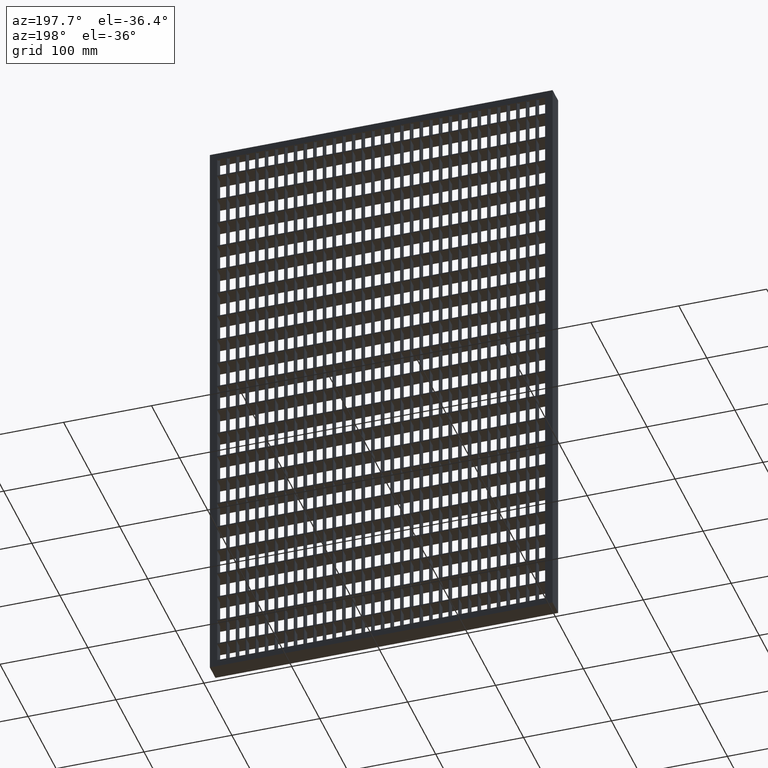
[diagram: clean part render]
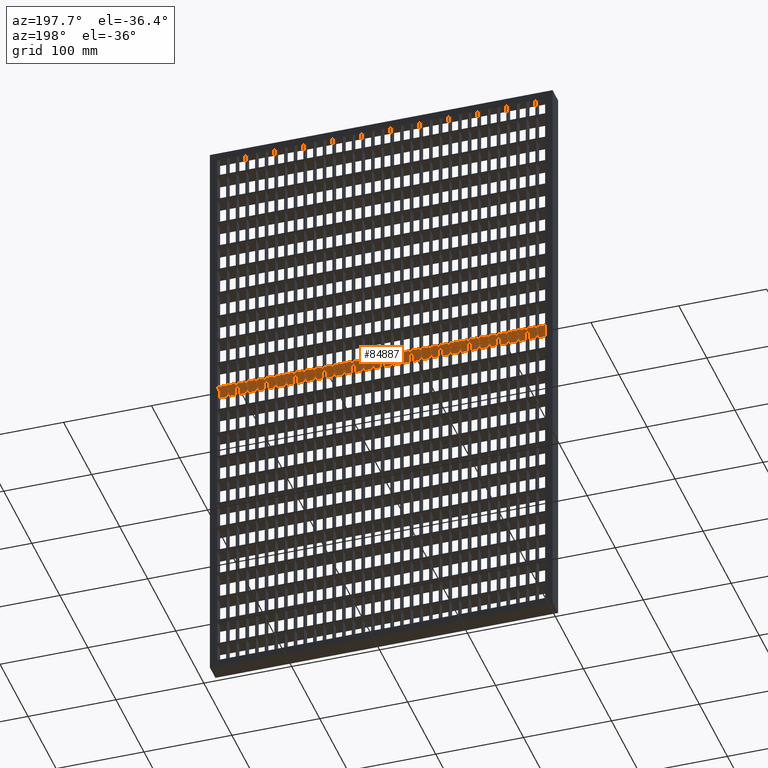
[diagram: same view with one face highlighted and labeled with its STEP entity id]
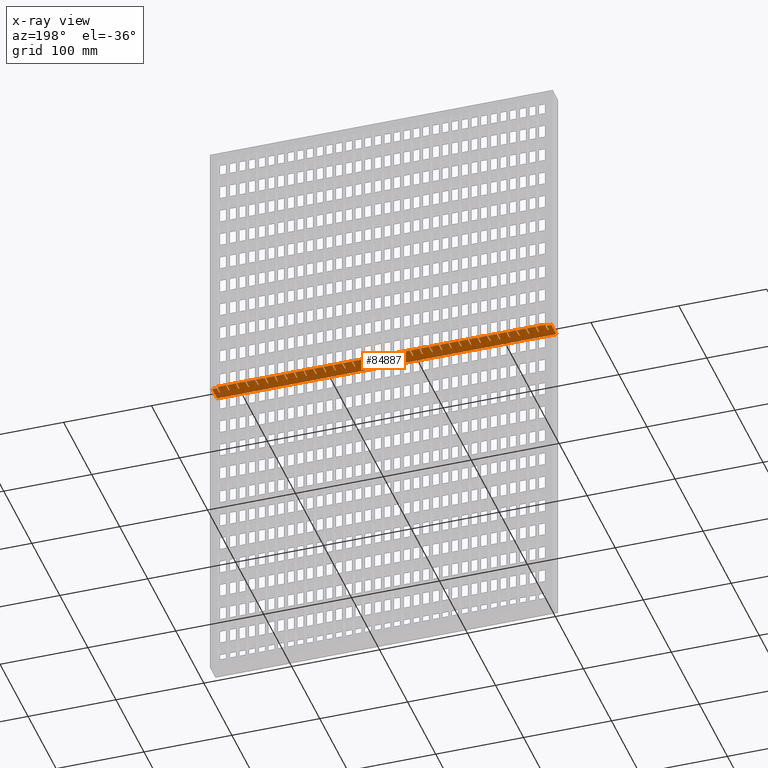
[diagram: x-ray of the same camera — body ghosted, the highlighted face saturated]
A machine part, auxiliary view. The second image highlights one B-rep face of the part: STEP entity #84887.
The next image is the same camera in x-ray: the body ghosted, the highlighted face saturated — about 0% of this face is hidden behind the body in this view.
In plain terms, the highlighted planar face has unit normal (0, 0, -1).
Its self-contained STEP definition (entity closure, byte-faithful):
#39 = ORIENTED_EDGE ( 'NONE', *, *, #57928, .F. ) ;
#112 = LINE ( 'NONE', #52347, #63353 ) ;
#271 = LINE ( 'NONE', #92678, #33187 ) ;
#303 = VECTOR ( 'NONE', #47124, 1000.000000000000000 ) ;
#404 = VERTEX_POINT ( 'NONE', #97459 ) ;
#497 = VERTEX_POINT ( 'NONE', #66226 ) ;
#511 = EDGE_CURVE ( 'NONE', #6106, #52737, #45007, .T. ) ;
#755 = EDGE_CURVE ( 'NONE', #49544, #87431, #68930, .T. ) ;
#790 = CARTESIAN_POINT ( 'NONE',  ( 206.5000000000000600, 7.001226303889181300E-016, -314.2500000000001100 ) ) ;
#814 = VERTEX_POINT ( 'NONE', #54538 ) ;
#825 = CARTESIAN_POINT ( 'NONE',  ( 304.5000000000000000, 10.00000000000000200, -314.2500000000001100 ) ) ;
#1156 = DIRECTION ( 'NONE',  ( 0.0000000000000000000, 1.000000000000000000, 0.0000000000000000000 ) ) ;
#1179 = ORIENTED_EDGE ( 'NONE', *, *, #18758, .F. ) ;
#1193 = LINE ( 'NONE', #70827, #45605 ) ;
#1275 = VECTOR ( 'NONE', #82627, 1000.000000000000000 ) ;
#1469 = LINE ( 'NONE', #83629, #36982 ) ;
#1478 = ORIENTED_EDGE ( 'NONE', *, *, #80392, .F. ) ;
#1601 = CARTESIAN_POINT ( 'NONE',  ( 359.5000000000000600, 10.00000000000000200, -314.2500000000001100 ) ) ;
#1630 = VERTEX_POINT ( 'NONE', #56831 ) ;
#1690 = VERTEX_POINT ( 'NONE', #57531 ) ;
#1910 = CARTESIAN_POINT ( 'NONE',  ( 408.0561711201316400, 10.00000000000012400, -314.2500000000001100 ) ) ;
#2102 = ORIENTED_EDGE ( 'NONE', *, *, #4016, .F. ) ;
#2117 = ORIENTED_EDGE ( 'NONE', *, *, #53256, .F. ) ;
#2568 = EDGE_CURVE ( 'NONE', #99731, #103983, #7928, .T. ) ;
#2706 = CARTESIAN_POINT ( 'NONE',  ( 408.0561711201316400, -3.989863994746656300E-014, -314.2500000000001100 ) ) ;
#2727 = DIRECTION ( 'NONE',  ( -1.000000000000000000, -3.061616997868383100E-016, 0.0000000000000000000 ) ) ;
#2897 = VECTOR ( 'NONE', #14347, 1000.000000000000000 ) ;
#2969 = EDGE_CURVE ( 'NONE', #78022, #88343, #100605, .T. ) ;
#3103 = VECTOR ( 'NONE', #100396, 1000.000000000000000 ) ;
#3162 = DIRECTION ( 'NONE',  ( 0.0000000000000000000, -1.000000000000000000, 0.0000000000000000000 ) ) ;
#3443 = CARTESIAN_POINT ( 'NONE',  ( 95.50000000000008500, 10.00000000000003000, -314.2500000000001100 ) ) ;
#3476 = EDGE_CURVE ( 'NONE', #73118, #15214, #43522, .T. ) ;
#3532 = CARTESIAN_POINT ( 'NONE',  ( 408.0561711201316400, 10.00000000000012400, -314.2500000000001100 ) ) ;
#3661 = ORIENTED_EDGE ( 'NONE', *, *, #46215, .T. ) ;
#3781 = DIRECTION ( 'NONE',  ( 0.0000000000000000000, -1.000000000000000000, 0.0000000000000000000 ) ) ;
#3902 = CARTESIAN_POINT ( 'NONE',  ( 327.5000000000000000, 10.00000000000000200, -314.2500000000001100 ) ) ;
#3911 = CARTESIAN_POINT ( 'NONE',  ( 217.5000000000000600, 7.001226303889181300E-016, -314.2500000000001100 ) ) ;
#3934 = VECTOR ( 'NONE', #84142, 1000.000000000000000 ) ;
#3975 = VECTOR ( 'NONE', #52204, 1000.000000000000000 ) ;
#3999 = CARTESIAN_POINT ( 'NONE',  ( 408.0561711201316400, -5.030698080332740600E-014, -314.2500000000001100 ) ) ;
#4016 = EDGE_CURVE ( 'NONE', #85233, #81371, #48391, .T. ) ;
#4045 = VERTEX_POINT ( 'NONE', #11436 ) ;
#4047 = LINE ( 'NONE', #39226, #5386 ) ;
#4129 = VECTOR ( 'NONE', #79084, 1000.000000000000000 ) ;
#4349 = EDGE_CURVE ( 'NONE', #86903, #54451, #72282, .T. ) ;
#4401 = EDGE_CURVE ( 'NONE', #78638, #90697, #12786, .T. ) ;
#4485 = VECTOR ( 'NONE', #20427, 1000.000000000000000 ) ;
#4548 = ORIENTED_EDGE ( 'NONE', *, *, #42803, .F. ) ;
#4847 = VERTEX_POINT ( 'NONE', #48982 ) ;
#4906 = DIRECTION ( 'NONE',  ( -1.000000000000000000, -3.061616997868383100E-016, 0.0000000000000000000 ) ) ;
#4963 = CARTESIAN_POINT ( 'NONE',  ( 227.5000000000000000, 0.0000000000000000000, -314.2500000000001100 ) ) ;
#5042 = CARTESIAN_POINT ( 'NONE',  ( 408.0561711201316400, 8.673617379884035500E-014, -314.2500000000001100 ) ) ;
#5260 = LINE ( 'NONE', #25289, #71046 ) ;
#5361 = LINE ( 'NONE', #14291, #4129 ) ;
#5386 = VECTOR ( 'NONE', #39921, 1000.000000000000000 ) ;
#5448 = LINE ( 'NONE', #50942, #89020 ) ;
#5450 = DIRECTION ( 'NONE',  ( 1.000000000000000000, -3.061616997868381200E-016, 0.0000000000000000000 ) ) ;
#5475 = DIRECTION ( 'NONE',  ( -1.000000000000000000, -3.061616997868383100E-016, 0.0000000000000000000 ) ) ;
#5478 = LINE ( 'NONE', #10968, #85216 ) ;
#5480 = VERTEX_POINT ( 'NONE', #40725 ) ;
#5578 = ORIENTED_EDGE ( 'NONE', *, *, #73301, .T. ) ;
#5994 = DIRECTION ( 'NONE',  ( 0.0000000000000000000, 1.000000000000000000, 0.0000000000000000000 ) ) ;
#6030 = VERTEX_POINT ( 'NONE', #76533 ) ;
#6101 = DIRECTION ( 'NONE',  ( 0.0000000000000000000, -1.000000000000000000, 0.0000000000000000000 ) ) ;
#6106 = VERTEX_POINT ( 'NONE', #103083 ) ;
#6206 = ORIENTED_EDGE ( 'NONE', *, *, #74067, .T. ) ;
#6232 = CARTESIAN_POINT ( 'NONE',  ( 337.5000000000000000, 0.0000000000000000000, -314.2500000000001100 ) ) ;
#6295 = VERTEX_POINT ( 'NONE', #79683 ) ;
#6414 = CARTESIAN_POINT ( 'NONE',  ( 348.5000000000000600, 10.00000000000000200, -314.2500000000001100 ) ) ;
#6484 = LINE ( 'NONE', #17701, #58338 ) ;
#6521 = DIRECTION ( 'NONE',  ( 0.0000000000000000000, -1.000000000000000000, 0.0000000000000000000 ) ) ;
#6584 = CARTESIAN_POINT ( 'NONE',  ( 150.5000000000000300, 7.001226303889181300E-016, -314.2500000000001100 ) ) ;
#6734 = CARTESIAN_POINT ( 'NONE',  ( 41.50000000000000700, 1.006284330175756500E-015, -314.2500000000001100 ) ) ;
#6818 = CARTESIAN_POINT ( 'NONE',  ( 305.5000000000000000, 7.001226303889181300E-016, -314.2500000000001100 ) ) ;
#6833 = LINE ( 'NONE', #44675, #101818 ) ;
#6957 = ORIENTED_EDGE ( 'NONE', *, *, #65957, .F. ) ;
#7044 = ORIENTED_EDGE ( 'NONE', *, *, #2568, .T. ) ;
#7175 = EDGE_CURVE ( 'NONE', #45686, #13312, #83128, .T. ) ;
#7299 = CARTESIAN_POINT ( 'NONE',  ( 206.5000000000000600, -9.999999999999877400, -314.2500000000001100 ) ) ;
#7402 = EDGE_CURVE ( 'NONE', #34706, #55858, #29910, .T. ) ;
#7447 = DIRECTION ( 'NONE',  ( 1.000000000000000000, -3.061616997868381200E-016, 0.0000000000000000000 ) ) ;
#7495 = EDGE_CURVE ( 'NONE', #60206, #49544, #67831, .T. ) ;
#7498 = VERTEX_POINT ( 'NONE', #31297 ) ;
#7685 = CARTESIAN_POINT ( 'NONE',  ( 315.5000000000001100, 0.0000000000000000000, -314.2500000000001100 ) ) ;
#7812 = CARTESIAN_POINT ( 'NONE',  ( 381.5000000000000600, 10.00000000000000200, -314.2500000000001100 ) ) ;
#7880 = VECTOR ( 'NONE', #101434, 1000.000000000000000 ) ;
#7928 = LINE ( 'NONE', #33972, #10488 ) ;
#7951 = EDGE_CURVE ( 'NONE', #73721, #76154, #10790, .T. ) ;
#7958 = VERTEX_POINT ( 'NONE', #43634 ) ;
#7991 = LINE ( 'NONE', #64723, #79027 ) ;
#8010 = LINE ( 'NONE', #100371, #33334 ) ;
#8142 = CARTESIAN_POINT ( 'NONE',  ( 408.0561711201316400, -6.071532165918824800E-014, -314.2500000000001100 ) ) ;
#8172 = DIRECTION ( 'NONE',  ( 0.0000000000000000000, 1.000000000000000000, 0.0000000000000000000 ) ) ;
#8273 = EDGE_CURVE ( 'NONE', #35629, #61623, #51372, .T. ) ;
#8493 = ORIENTED_EDGE ( 'NONE', *, *, #48735, .T. ) ;
#8608 = ORIENTED_EDGE ( 'NONE', *, *, #19756, .F. ) ;
#8692 = VERTEX_POINT ( 'NONE', #20865 ) ;
#8766 = VECTOR ( 'NONE', #7447, 1000.000000000000000 ) ;
#9034 = EDGE_CURVE ( 'NONE', #101989, #73175, #33459, .T. ) ;
#9244 = VERTEX_POINT ( 'NONE', #42240 ) ;
#9565 = DIRECTION ( 'NONE',  ( -1.000000000000000000, -3.061616997868383100E-016, 0.0000000000000000000 ) ) ;
#9652 = DIRECTION ( 'NONE',  ( 1.000000000000000000, 0.0000000000000000000, 0.0000000000000000000 ) ) ;
#9796 = ORIENTED_EDGE ( 'NONE', *, *, #94476, .T. ) ;
#9827 = ORIENTED_EDGE ( 'NONE', *, *, #51061, .F. ) ;
#9891 = ORIENTED_EDGE ( 'NONE', *, *, #72750, .F. ) ;
#9899 = EDGE_CURVE ( 'NONE', #40347, #37488, #5448, .T. ) ;
#9913 = EDGE_CURVE ( 'NONE', #95473, #10345, #29415, .T. ) ;
#10095 = CARTESIAN_POINT ( 'NONE',  ( 408.0561711201316400, -9.999999999999877400, -314.2500000000001100 ) ) ;
#10340 = VECTOR ( 'NONE', #45058, 1000.000000000000000 ) ;
#10345 = VERTEX_POINT ( 'NONE', #77616 ) ;
#10409 = VECTOR ( 'NONE', #19760, 1000.000000000000000 ) ;
#10487 = CARTESIAN_POINT ( 'NONE',  ( 250.5000000000000600, -9.999999999999877400, -314.2500000000001100 ) ) ;
#10488 = VECTOR ( 'NONE', #50946, 1000.000000000000000 ) ;
#10539 = LINE ( 'NONE', #15390, #72567 ) ;
#10786 = EDGE_CURVE ( 'NONE', #13788, #98179, #93985, .T. ) ;
#10790 = LINE ( 'NONE', #46125, #14541 ) ;
#10806 = LINE ( 'NONE', #59433, #40004 ) ;
#10898 = EDGE_CURVE ( 'NONE', #75369, #6106, #100339, .T. ) ;
#10927 = DIRECTION ( 'NONE',  ( 0.0000000000000000000, -1.000000000000000000, 0.0000000000000000000 ) ) ;
#10954 = EDGE_CURVE ( 'NONE', #40843, #46437, #14170, .T. ) ;
#10968 = CARTESIAN_POINT ( 'NONE',  ( 408.0561711201316400, 8.326672684688674100E-014, -314.2500000000001100 ) ) ;
#11197 = DIRECTION ( 'NONE',  ( 0.0000000000000000000, -1.000000000000000000, 0.0000000000000000000 ) ) ;
#11385 = VECTOR ( 'NONE', #26515, 1000.000000000000000 ) ;
#11436 = CARTESIAN_POINT ( 'NONE',  ( 304.5000000000000000, 0.0000000000000000000, -314.2500000000001100 ) ) ;
#11498 = VECTOR ( 'NONE', #2727, 1000.000000000000000 ) ;
#11511 = CARTESIAN_POINT ( 'NONE',  ( 261.5000000000000600, 7.001226303889181300E-016, -314.2500000000001100 ) ) ;
#11513 = CARTESIAN_POINT ( 'NONE',  ( 294.5000000000000600, -9.999999999999877400, -314.2500000000001100 ) ) ;
#11537 = VERTEX_POINT ( 'NONE', #84470 ) ;
#11903 = LINE ( 'NONE', #26697, #90405 ) ;
#11974 = CARTESIAN_POINT ( 'NONE',  ( 52.50000000000005000, -9.999999999999877400, -314.2500000000001100 ) ) ;
#12079 = VERTEX_POINT ( 'NONE', #64486 ) ;
#12177 = ORIENTED_EDGE ( 'NONE', *, *, #78146, .F. ) ;
#12199 = DIRECTION ( 'NONE',  ( -1.000000000000000000, -3.061616997868383100E-016, 0.0000000000000000000 ) ) ;
#12280 = CARTESIAN_POINT ( 'NONE',  ( 338.5000000000000000, 10.00000000000000200, -314.2500000000001100 ) ) ;
#12332 = DIRECTION ( 'NONE',  ( 0.0000000000000000000, 1.000000000000000000, 0.0000000000000000000 ) ) ;
#12338 = CARTESIAN_POINT ( 'NONE',  ( 408.0561711201316400, 10.00000000000012400, -314.2500000000001100 ) ) ;
#12345 = DIRECTION ( 'NONE',  ( 0.0000000000000000000, -1.000000000000000000, 0.0000000000000000000 ) ) ;
#12436 = CARTESIAN_POINT ( 'NONE',  ( 408.0561711201316400, 10.00000000000012400, -314.2500000000001100 ) ) ;
#12447 = CARTESIAN_POINT ( 'NONE',  ( 117.5000000000001000, 10.00000000000003700, -314.2500000000001100 ) ) ;
#12464 = CARTESIAN_POINT ( 'NONE',  ( 408.0561711201316400, 10.00000000000012400, -314.2500000000001100 ) ) ;
#12561 = CARTESIAN_POINT ( 'NONE',  ( 408.0561711201316400, -5.724587470723463400E-014, -314.2500000000001100 ) ) ;
#12617 = CARTESIAN_POINT ( 'NONE',  ( 217.5000000000000600, 10.00000000000000200, -314.2500000000001100 ) ) ;
#12645 = EDGE_CURVE ( 'NONE', #88010, #77776, #28925, .T. ) ;
#12750 = ORIENTED_EDGE ( 'NONE', *, *, #70962, .F. ) ;
#12779 = EDGE_CURVE ( 'NONE', #13383, #63190, #37818, .T. ) ;
#12786 = LINE ( 'NONE', #16638, #19088 ) ;
#12986 = VECTOR ( 'NONE', #94617, 1000.000000000000000 ) ;
#13161 = LINE ( 'NONE', #25574, #104405 ) ;
#13201 = DIRECTION ( 'NONE',  ( 0.0000000000000000000, 1.000000000000000000, 0.0000000000000000000 ) ) ;
#13292 = ORIENTED_EDGE ( 'NONE', *, *, #14368, .T. ) ;
#13296 = VECTOR ( 'NONE', #94271, 1000.000000000000000 ) ;
#13312 = VERTEX_POINT ( 'NONE', #40984 ) ;
#13316 = VECTOR ( 'NONE', #30623, 1000.000000000000000 ) ;
#13383 = VERTEX_POINT ( 'NONE', #50847 ) ;
#13466 = EDGE_CURVE ( 'NONE', #73584, #103731, #15998, .T. ) ;
#13579 = VERTEX_POINT ( 'NONE', #35645 ) ;
#13602 = ORIENTED_EDGE ( 'NONE', *, *, #95620, .T. ) ;
#13622 = LINE ( 'NONE', #75978, #49083 ) ;
#13788 = VERTEX_POINT ( 'NONE', #30965 ) ;
#13951 = CARTESIAN_POINT ( 'NONE',  ( 118.5000000000000100, 10.00000000000000200, -314.2500000000001100 ) ) ;
#14043 = LINE ( 'NONE', #73211, #59623 ) ;
#14074 = ORIENTED_EDGE ( 'NONE', *, *, #9034, .F. ) ;
#14168 = ORIENTED_EDGE ( 'NONE', *, *, #83934, .F. ) ;
#14170 = LINE ( 'NONE', #83201, #54711 ) ;
#14228 = ORIENTED_EDGE ( 'NONE', *, *, #94472, .T. ) ;
#14270 = LINE ( 'NONE', #34313, #77658 ) ;
#14282 = CARTESIAN_POINT ( 'NONE',  ( 388.0000000000000600, -9.999999999999877400, -314.2500000000001100 ) ) ;
#14291 = CARTESIAN_POINT ( 'NONE',  ( 205.5000000000000600, -9.999999999999877400, -314.2500000000001100 ) ) ;
#14347 = DIRECTION ( 'NONE',  ( 0.0000000000000000000, -1.000000000000000000, 0.0000000000000000000 ) ) ;
#14368 = EDGE_CURVE ( 'NONE', #28617, #68623, #24896, .T. ) ;
#14541 = VECTOR ( 'NONE', #75801, 1000.000000000000000 ) ;
#14617 = LINE ( 'NONE', #37535, #65271 ) ;
#15214 = VERTEX_POINT ( 'NONE', #59176 ) ;
#15218 = VECTOR ( 'NONE', #90728, 1000.000000000000000 ) ;
#15228 = CARTESIAN_POINT ( 'NONE',  ( 74.50000000000001400, 10.00000000000000200, -314.2500000000001100 ) ) ;
#15323 = EDGE_CURVE ( 'NONE', #15214, #69314, #33511, .T. ) ;
#15390 = CARTESIAN_POINT ( 'NONE',  ( 194.9999999999999700, 8.000000000000001800, -314.2500000000001100 ) ) ;
#15422 = ORIENTED_EDGE ( 'NONE', *, *, #71363, .F. ) ;
#15521 = DIRECTION ( 'NONE',  ( -1.000000000000000000, -3.061616997868381200E-016, 0.0000000000000000000 ) ) ;
#15645 = LINE ( 'NONE', #11974, #89068 ) ;
#15698 = CARTESIAN_POINT ( 'NONE',  ( 216.5000000000000600, 0.0000000000000000000, -314.2500000000001100 ) ) ;
#15768 = ORIENTED_EDGE ( 'NONE', *, *, #12779, .F. ) ;
#15871 = EDGE_CURVE ( 'NONE', #52520, #60206, #56150, .T. ) ;
#15998 = LINE ( 'NONE', #25709, #19762 ) ;
#16080 = EDGE_CURVE ( 'NONE', #63260, #85094, #96719, .T. ) ;
#16129 = ORIENTED_EDGE ( 'NONE', *, *, #7951, .F. ) ;
#16161 = VECTOR ( 'NONE', #5450, 1000.000000000000000 ) ;
#16179 = CARTESIAN_POINT ( 'NONE',  ( 271.5000000000000600, 10.00000000000000200, -314.2500000000001100 ) ) ;
#16234 = VECTOR ( 'NONE', #67767, 1000.000000000000000 ) ;
#16473 = VERTEX_POINT ( 'NONE', #76315 ) ;
#16482 = VERTEX_POINT ( 'NONE', #12617 ) ;
#16498 = VERTEX_POINT ( 'NONE', #19356 ) ;
#16638 = CARTESIAN_POINT ( 'NONE',  ( 371.5000000000000600, -9.999999999999877400, -314.2500000000001100 ) ) ;
#17044 = LINE ( 'NONE', #103541, #13316 ) ;
#17151 = EDGE_CURVE ( 'NONE', #78142, #46644, #23083, .T. ) ;
#17210 = VERTEX_POINT ( 'NONE', #16179 ) ;
#17525 = ORIENTED_EDGE ( 'NONE', *, *, #74837, .T. ) ;
#17560 = CARTESIAN_POINT ( 'NONE',  ( 408.0561711201316400, 10.00000000000012400, -314.2500000000001100 ) ) ;
#17634 = DIRECTION ( 'NONE',  ( -1.000000000000000000, 0.0000000000000000000, 0.0000000000000000000 ) ) ;
#17672 = CARTESIAN_POINT ( 'NONE',  ( 85.50000000000001400, -9.999999999999877400, -314.2500000000001100 ) ) ;
#17674 = CARTESIAN_POINT ( 'NONE',  ( 84.50000000000001400, -9.999999999999877400, -314.2500000000001100 ) ) ;
#17695 = LINE ( 'NONE', #68249, #74689 ) ;
#17701 = CARTESIAN_POINT ( 'NONE',  ( 408.0561711201316400, 10.00000000000012400, -314.2500000000001100 ) ) ;
#17795 = ORIENTED_EDGE ( 'NONE', *, *, #56318, .F. ) ;
#17802 = DIRECTION ( 'NONE',  ( 0.0000000000000000000, -1.000000000000000000, 0.0000000000000000000 ) ) ;
#17839 = EDGE_CURVE ( 'NONE', #61302, #98213, #57077, .T. ) ;
#17897 = CARTESIAN_POINT ( 'NONE',  ( 227.5000000000000000, 10.00000000000000200, -314.2500000000001100 ) ) ;
#17952 = VERTEX_POINT ( 'NONE', #95724 ) ;
#18206 = DIRECTION ( 'NONE',  ( -1.000000000000000000, -3.061616997868383100E-016, 0.0000000000000000000 ) ) ;
#18558 = ORIENTED_EDGE ( 'NONE', *, *, #19073, .T. ) ;
#18568 = DIRECTION ( 'NONE',  ( -1.000000000000000000, -3.061616997868383100E-016, 0.0000000000000000000 ) ) ;
#18600 = ORIENTED_EDGE ( 'NONE', *, *, #89146, .F. ) ;
#18715 = ORIENTED_EDGE ( 'NONE', *, *, #17839, .F. ) ;
#18758 = EDGE_CURVE ( 'NONE', #63190, #20748, #26432, .T. ) ;
#19073 = EDGE_CURVE ( 'NONE', #4045, #64309, #78246, .T. ) ;
#19076 = CARTESIAN_POINT ( 'NONE',  ( 261.5000000000000600, -9.999999999999877400, -314.2500000000001100 ) ) ;
#19088 = VECTOR ( 'NONE', #49918, 1000.000000000000000 ) ;
#19251 = ORIENTED_EDGE ( 'NONE', *, *, #40216, .T. ) ;
#19338 = ORIENTED_EDGE ( 'NONE', *, *, #100933, .F. ) ;
#19356 = CARTESIAN_POINT ( 'NONE',  ( 349.5000000000000600, 7.001226303889181300E-016, -314.2500000000001100 ) ) ;
#19528 = CARTESIAN_POINT ( 'NONE',  ( 388.0000000000001100, 8.000000000000001800, -314.2500000000001100 ) ) ;
#19548 = LINE ( 'NONE', #60213, #60047 ) ;
#19561 = DIRECTION ( 'NONE',  ( -1.000000000000000000, -3.061616997868383100E-016, 0.0000000000000000000 ) ) ;
#19623 = CARTESIAN_POINT ( 'NONE',  ( 128.5000000000000000, 7.001226303889181300E-016, -314.2500000000001100 ) ) ;
#19708 = VECTOR ( 'NONE', #39899, 1000.000000000000000 ) ;
#19730 = VECTOR ( 'NONE', #58811, 1000.000000000000000 ) ;
#19756 = EDGE_CURVE ( 'NONE', #90878, #52520, #45709, .T. ) ;
#19760 = DIRECTION ( 'NONE',  ( 0.0000000000000000000, 1.000000000000000000, 0.0000000000000000000 ) ) ;
#19762 = VECTOR ( 'NONE', #42010, 1000.000000000000000 ) ;
#19809 = LINE ( 'NONE', #75515, #64067 ) ;
#19876 = CARTESIAN_POINT ( 'NONE',  ( 195.5000000000000000, 10.00000000000000200, -314.2500000000001100 ) ) ;
#19903 = VECTOR ( 'NONE', #98000, 1000.000000000000000 ) ;
#19906 = LINE ( 'NONE', #27038, #99762 ) ;
#19912 = ORIENTED_EDGE ( 'NONE', *, *, #84428, .F. ) ;
#20000 = DIRECTION ( 'NONE',  ( 0.0000000000000000000, 1.000000000000000000, 0.0000000000000000000 ) ) ;
#20085 = DIRECTION ( 'NONE',  ( -1.000000000000000000, -3.061616997868381200E-016, 0.0000000000000000000 ) ) ;
#20237 = CARTESIAN_POINT ( 'NONE',  ( 272.5000000000000600, -9.999999999999877400, -314.2500000000001100 ) ) ;
#20427 = DIRECTION ( 'NONE',  ( 1.000000000000000000, -3.061616997868381200E-016, 0.0000000000000000000 ) ) ;
#20706 = CARTESIAN_POINT ( 'NONE',  ( 408.0561711201316400, -3.295974604355933500E-014, -314.2500000000001100 ) ) ;
#20726 = VERTEX_POINT ( 'NONE', #67583 ) ;
#20748 = VERTEX_POINT ( 'NONE', #84958 ) ;
#20826 = LINE ( 'NONE', #87719, #53739 ) ;
#20865 = CARTESIAN_POINT ( 'NONE',  ( 2.000000000000003600, -10.00000000000000000, -314.2500000000001100 ) ) ;
#20953 = CARTESIAN_POINT ( 'NONE',  ( 239.5000000000000300, -9.999999999999877400, -314.2500000000001100 ) ) ;
#21005 = CARTESIAN_POINT ( 'NONE',  ( 272.5000000000000600, 7.001226303889181300E-016, -314.2500000000001100 ) ) ;
#21187 = ORIENTED_EDGE ( 'NONE', *, *, #9899, .F. ) ;
#21224 = ORIENTED_EDGE ( 'NONE', *, *, #58226, .T. ) ;
#21226 = EDGE_CURVE ( 'NONE', #61302, #36250, #27628, .T. ) ;
#21315 = VECTOR ( 'NONE', #97380, 1000.000000000000000 ) ;
#21320 = LINE ( 'NONE', #2706, #74484 ) ;
#21514 = CARTESIAN_POINT ( 'NONE',  ( 337.5000000000000000, -9.999999999999877400, -314.2500000000001100 ) ) ;
#21629 = CARTESIAN_POINT ( 'NONE',  ( 408.0561711201316400, 1.179611963664228800E-013, -314.2500000000001100 ) ) ;
#21635 = DIRECTION ( 'NONE',  ( 0.0000000000000000000, 1.000000000000000000, 0.0000000000000000000 ) ) ;
#21663 = CARTESIAN_POINT ( 'NONE',  ( 293.5000000000000600, 10.00000000000000200, -314.2500000000001100 ) ) ;
#21926 = DIRECTION ( 'NONE',  ( 0.0000000000000000000, 1.000000000000000000, 0.0000000000000000000 ) ) ;
#21974 = CARTESIAN_POINT ( 'NONE',  ( 216.5000000000000600, 10.00000000000000200, -314.2500000000001100 ) ) ;
#22445 = LINE ( 'NONE', #83133, #19903 ) ;
#22468 = ORIENTED_EDGE ( 'NONE', *, *, #47911, .F. ) ;
#22548 = LINE ( 'NONE', #52969, #74425 ) ;
#22685 = ORIENTED_EDGE ( 'NONE', *, *, #78461, .T. ) ;
#22750 = ORIENTED_EDGE ( 'NONE', *, *, #72970, .T. ) ;
#22788 = CARTESIAN_POINT ( 'NONE',  ( 282.5000000000000600, 10.00000000000000200, -314.2500000000001100 ) ) ;
#22801 = CARTESIAN_POINT ( 'NONE',  ( 30.50000000000002800, -9.999999999999877400, -314.2500000000001100 ) ) ;
#22833 = LINE ( 'NONE', #34826, #15218 ) ;
#23083 = LINE ( 'NONE', #3999, #68647 ) ;
#23469 = LINE ( 'NONE', #31724, #19708 ) ;
#23556 = ORIENTED_EDGE ( 'NONE', *, *, #10954, .F. ) ;
#23594 = VECTOR ( 'NONE', #25209, 1000.000000000000000 ) ;
#23631 = CARTESIAN_POINT ( 'NONE',  ( 7.500000000000007100, 7.001226303889181300E-016, -314.2500000000001100 ) ) ;
#23686 = EDGE_CURVE ( 'NONE', #28565, #60642, #6833, .T. ) ;
#23845 = EDGE_CURVE ( 'NONE', #72998, #72010, #64944, .T. ) ;
#23930 = VECTOR ( 'NONE', #68266, 1000.000000000000000 ) ;
#24386 = LINE ( 'NONE', #71320, #2897 ) ;
#24388 = VECTOR ( 'NONE', #57078, 1000.000000000000000 ) ;
#24394 = DIRECTION ( 'NONE',  ( -1.000000000000000000, -3.061616997868383100E-016, 0.0000000000000000000 ) ) ;
#24468 = EDGE_CURVE ( 'NONE', #70897, #17952, #4047, .T. ) ;
#24896 = LINE ( 'NONE', #62994, #97159 ) ;
#25007 = EDGE_CURVE ( 'NONE', #28617, #81590, #17044, .T. ) ;
#25068 = LINE ( 'NONE', #12561, #60526 ) ;
#25174 = LINE ( 'NONE', #11513, #85966 ) ;
#25209 = DIRECTION ( 'NONE',  ( -1.000000000000000000, -3.061616997868381200E-016, 0.0000000000000000000 ) ) ;
#25289 = CARTESIAN_POINT ( 'NONE',  ( 249.5000000000000300, -9.999999999999877400, -314.2500000000001100 ) ) ;
#25376 = DIRECTION ( 'NONE',  ( 0.0000000000000000000, -1.000000000000000000, 0.0000000000000000000 ) ) ;
#25390 = EDGE_CURVE ( 'NONE', #64309, #6030, #97349, .T. ) ;
#25399 = EDGE_CURVE ( 'NONE', #40814, #48213, #59326, .T. ) ;
#25471 = ORIENTED_EDGE ( 'NONE', *, *, #67665, .T. ) ;
#25574 = CARTESIAN_POINT ( 'NONE',  ( 2.000000000000003600, 8.000000000000001800, -314.2500000000001100 ) ) ;
#25682 = VECTOR ( 'NONE', #6101, 1000.000000000000000 ) ;
#25691 = EDGE_CURVE ( 'NONE', #50285, #70897, #46812, .T. ) ;
#25700 = ORIENTED_EDGE ( 'NONE', *, *, #80913, .F. ) ;
#25709 = CARTESIAN_POINT ( 'NONE',  ( 140.5000000000000000, -9.999999999999877400, -314.2500000000001100 ) ) ;
#25879 = VERTEX_POINT ( 'NONE', #81745 ) ;
#26091 = CARTESIAN_POINT ( 'NONE',  ( 85.50000000000001400, 1.006284330175756500E-015, -314.2500000000001100 ) ) ;
#26093 = CARTESIAN_POINT ( 'NONE',  ( 326.5000000000000000, -9.999999999999877400, -314.2500000000001100 ) ) ;
#26230 = VERTEX_POINT ( 'NONE', #54087 ) ;
#26350 = LINE ( 'NONE', #54782, #88405 ) ;
#26432 = LINE ( 'NONE', #42663, #87189 ) ;
#26515 = DIRECTION ( 'NONE',  ( 0.0000000000000000000, -1.000000000000000000, 0.0000000000000000000 ) ) ;
#26549 = DIRECTION ( 'NONE',  ( 0.0000000000000000000, -1.000000000000000000, 0.0000000000000000000 ) ) ;
#26697 = CARTESIAN_POINT ( 'NONE',  ( 370.5000000000000600, -9.999999999999877400, -314.2500000000001100 ) ) ;
#26744 = CARTESIAN_POINT ( 'NONE',  ( 408.0561711201316400, -1.734723475976807100E-014, -314.2500000000001100 ) ) ;
#26888 = CARTESIAN_POINT ( 'NONE',  ( 408.0561711201316400, 7.632783294297951200E-014, -314.2500000000001100 ) ) ;
#26987 = DIRECTION ( 'NONE',  ( -1.000000000000000000, -3.061616997868383100E-016, 0.0000000000000000000 ) ) ;
#27038 = CARTESIAN_POINT ( 'NONE',  ( 217.5000000000000600, -9.999999999999877400, -314.2500000000001100 ) ) ;
#27090 = VECTOR ( 'NONE', #104281, 1000.000000000000000 ) ;
#27147 = CARTESIAN_POINT ( 'NONE',  ( 129.5000000000000000, -9.999999999999877400, -314.2500000000001100 ) ) ;
#27355 = VECTOR ( 'NONE', #90448, 1000.000000000000000 ) ;
#27538 = VERTEX_POINT ( 'NONE', #3911 ) ;
#27628 = LINE ( 'NONE', #81325, #68097 ) ;
#27777 = CARTESIAN_POINT ( 'NONE',  ( 272.5000000000000600, 10.00000000000000200, -314.2500000000001100 ) ) ;
#27869 = CARTESIAN_POINT ( 'NONE',  ( 117.5000000000000100, 7.001226303889181300E-016, -314.2500000000001100 ) ) ;
#28292 = CARTESIAN_POINT ( 'NONE',  ( 408.0561711201316400, 1.144917494144692700E-013, -314.2500000000001100 ) ) ;
#28325 = CARTESIAN_POINT ( 'NONE',  ( 74.50000000000001400, 1.006284330175756500E-015, -314.2500000000001100 ) ) ;
#28456 = DIRECTION ( 'NONE',  ( -1.000000000000000000, -3.061616997868383100E-016, 0.0000000000000000000 ) ) ;
#28565 = VERTEX_POINT ( 'NONE', #43037 ) ;
#28579 = CARTESIAN_POINT ( 'NONE',  ( 408.0561711201316400, -4.336808689942017700E-014, -314.2500000000001100 ) ) ;
#28617 = VERTEX_POINT ( 'NONE', #1601 ) ;
#28702 = CARTESIAN_POINT ( 'NONE',  ( 172.5000000000000300, -9.999999999999877400, -314.2500000000001100 ) ) ;
#28750 = DIRECTION ( 'NONE',  ( 0.0000000000000000000, 1.000000000000000000, 0.0000000000000000000 ) ) ;
#28772 = EDGE_CURVE ( 'NONE', #58988, #93264, #102989, .T. ) ;
#28838 = CARTESIAN_POINT ( 'NONE',  ( 150.5000000000000900, 10.00000000000004600, -314.2500000000001100 ) ) ;
#28925 = LINE ( 'NONE', #47851, #21315 ) ;
#29388 = CARTESIAN_POINT ( 'NONE',  ( 260.5000000000000600, 10.00000000000000200, -314.2500000000001100 ) ) ;
#29415 = LINE ( 'NONE', #19076, #10409 ) ;
#29543 = EDGE_CURVE ( 'NONE', #98749, #80860, #101456, .T. ) ;
#29568 = EDGE_CURVE ( 'NONE', #41482, #55485, #6484, .T. ) ;
#29699 = EDGE_CURVE ( 'NONE', #96500, #84375, #47026, .T. ) ;
#29882 = EDGE_CURVE ( 'NONE', #68218, #72998, #69685, .T. ) ;
#29910 = LINE ( 'NONE', #45496, #58998 ) ;
#30058 = ORIENTED_EDGE ( 'NONE', *, *, #89935, .T. ) ;
#30154 = EDGE_CURVE ( 'NONE', #72529, #60771, #77241, .T. ) ;
#30317 = CARTESIAN_POINT ( 'NONE',  ( 19.50000000000001800, 10.00000000000000200, -314.2500000000001100 ) ) ;
#30325 = LINE ( 'NONE', #93021, #60762 ) ;
#30426 = CARTESIAN_POINT ( 'NONE',  ( 408.0561711201316400, 6.765421556309547700E-014, -314.2500000000001100 ) ) ;
#30445 = ORIENTED_EDGE ( 'NONE', *, *, #76073, .T. ) ;
#30493 = VERTEX_POINT ( 'NONE', #36941 ) ;
#30623 = DIRECTION ( 'NONE',  ( -1.000000000000000000, -3.061616997868383100E-016, 0.0000000000000000000 ) ) ;
#30799 = VECTOR ( 'NONE', #49555, 1000.000000000000000 ) ;
#30818 = CARTESIAN_POINT ( 'NONE',  ( 30.50000000000002800, 1.006284330175756500E-015, -314.2500000000001100 ) ) ;
#30910 = VECTOR ( 'NONE', #62700, 1000.000000000000000 ) ;
#30965 = CARTESIAN_POINT ( 'NONE',  ( 51.50000000000009900, 10.00000000000001600, -314.2500000000001100 ) ) ;
#31213 = VECTOR ( 'NONE', #100389, 1000.000000000000000 ) ;
#31278 = VECTOR ( 'NONE', #101685, 1000.000000000000000 ) ;
#31297 = CARTESIAN_POINT ( 'NONE',  ( 29.50000000000008200, 10.00000000000000900, -314.2500000000001100 ) ) ;
#31323 = ORIENTED_EDGE ( 'NONE', *, *, #38354, .T. ) ;
#31657 = EDGE_CURVE ( 'NONE', #16498, #81590, #45232, .T. ) ;
#31695 = CARTESIAN_POINT ( 'NONE',  ( 161.5000000000000000, -9.999999999999877400, -314.2500000000001100 ) ) ;
#31716 = VECTOR ( 'NONE', #57067, 1000.000000000000000 ) ;
#31724 = CARTESIAN_POINT ( 'NONE',  ( 408.0561711201316400, 10.00000000000012400, -314.2500000000001100 ) ) ;
#31809 = AXIS2_PLACEMENT_3D ( 'NONE', #50583, #58341, #17634 ) ;
#31965 = LINE ( 'NONE', #85067, #63594 ) ;
#32109 = CARTESIAN_POINT ( 'NONE',  ( 408.0561711201316400, -5.377642775528102000E-014, -314.2500000000001100 ) ) ;
#32299 = LINE ( 'NONE', #82572, #86749 ) ;
#33119 = EDGE_CURVE ( 'NONE', #17210, #10345, #14617, .T. ) ;
#33187 = VECTOR ( 'NONE', #99429, 1000.000000000000000 ) ;
#33216 = LINE ( 'NONE', #70804, #303 ) ;
#33300 = LINE ( 'NONE', #59645, #7880 ) ;
#33322 = LINE ( 'NONE', #90950, #30799 ) ;
#33334 = VECTOR ( 'NONE', #12199, 1000.000000000000000 ) ;
#33336 = EDGE_LOOP ( 'NONE', ( #92663, #55892, #61934, #42869, #63231, #85834, #100330, #1179, #15768, #85896, #61199, #6957, #82347, #21187, #84741, #9891, #81754, #42514, #58223, #8608, #41644, #66798, #80983, #93648, #77605, #93300, #56496, #68650, #54581, #48891, #88844, #78641, #46246, #18600, #44745, #79075, #90925, #56325, #36856, #102949, #66719, #34126, #25700, #14074, #70832, #44319, #89702, #44918, #16129, #39953, #80849, #77633, #37911, #41841, #2117, #42164, #9827, #45973, #14168, #46610, #4548, #41251, #102468, #38858, #17795, #15422, #66630, #39, #19912, #22468, #12750, #59376, #33937, #2102, #99586, #37207, #84448, #91429, #69869, #13602, #5578, #50555, #68247, #70755, #8493, #61338, #56984, #57606, #51145, #38645, #23556, #3661, #59577, #76906, #71674, #21224, #7044, #35787, #18715, #70564, #89569, #97285, #86685, #30058, #14228, #84421, #19338, #80540, #22750, #41144, #67751, #104321, #103387, #72047, #67845, #38213, #18558, #52252, #73969, #22685, #50188, #38733, #65236, #30445, #71606, #9796, #12177, #31323, #95805, #39942, #58663, #25471, #6206, #96536, #81962, #13292, #19251, #71169, #39089, #54449, #17525, #101720, #1478, #79224 ) ) ;
#33383 = CARTESIAN_POINT ( 'NONE',  ( 408.0561711201316400, 1.040834085586084300E-013, -314.2500000000001100 ) ) ;
#33459 = LINE ( 'NONE', #81191, #82829 ) ;
#33511 = LINE ( 'NONE', #5042, #47456 ) ;
#33620 = LINE ( 'NONE', #28579, #4485 ) ;
#33937 = ORIENTED_EDGE ( 'NONE', *, *, #68024, .F. ) ;
#33972 = CARTESIAN_POINT ( 'NONE',  ( 408.0561711201316400, -4.683753385137379200E-014, -314.2500000000001100 ) ) ;
#33983 = VECTOR ( 'NONE', #28456, 1000.000000000000000 ) ;
#34126 = ORIENTED_EDGE ( 'NONE', *, *, #46622, .F. ) ;
#34157 = DIRECTION ( 'NONE',  ( 0.0000000000000000000, -1.000000000000000000, 0.0000000000000000000 ) ) ;
#34303 = VERTEX_POINT ( 'NONE', #36613 ) ;
#34313 = CARTESIAN_POINT ( 'NONE',  ( 194.5000000000000000, -9.999999999999877400, -314.2500000000001100 ) ) ;
#34421 = EDGE_CURVE ( 'NONE', #9244, #103253, #100476, .T. ) ;
#34479 = VERTEX_POINT ( 'NONE', #86825 ) ;
#34508 = EDGE_CURVE ( 'NONE', #95856, #45545, #78945, .T. ) ;
#34607 = CARTESIAN_POINT ( 'NONE',  ( 62.50000000000000000, 7.001226303889181300E-016, -314.2500000000001100 ) ) ;
#34615 = VERTEX_POINT ( 'NONE', #7812 ) ;
#34706 = VERTEX_POINT ( 'NONE', #56998 ) ;
#34750 = EDGE_CURVE ( 'NONE', #497, #98749, #73731, .T. ) ;
#34790 = VECTOR ( 'NONE', #12332, 1000.000000000000000 ) ;
#34826 = CARTESIAN_POINT ( 'NONE',  ( 29.50000000000002500, -9.999999999999877400, -314.2500000000001100 ) ) ;
#34932 = CARTESIAN_POINT ( 'NONE',  ( 327.5000000000000000, -9.999999999999877400, -314.2500000000001100 ) ) ;
#34952 = CARTESIAN_POINT ( 'NONE',  ( 408.0561711201316400, 10.00000000000012400, -314.2500000000001100 ) ) ;
#35244 = VERTEX_POINT ( 'NONE', #7685 ) ;
#35347 = VECTOR ( 'NONE', #26549, 1000.000000000000000 ) ;
#35487 = CARTESIAN_POINT ( 'NONE',  ( 408.0561711201316400, 10.00000000000012400, -314.2500000000001100 ) ) ;
#35506 = EDGE_CURVE ( 'NONE', #7498, #40347, #70996, .T. ) ;
#35615 = VECTOR ( 'NONE', #77312, 1000.000000000000000 ) ;
#35629 = VERTEX_POINT ( 'NONE', #67973 ) ;
#35645 = CARTESIAN_POINT ( 'NONE',  ( 73.50000000000001400, 7.001226303889181300E-016, -314.2500000000001100 ) ) ;
#35704 = CARTESIAN_POINT ( 'NONE',  ( 360.5000000000000600, -9.999999999999877400, -314.2500000000001100 ) ) ;
#35787 = ORIENTED_EDGE ( 'NONE', *, *, #83724, .T. ) ;
#36250 = VERTEX_POINT ( 'NONE', #60833 ) ;
#36301 = VERTEX_POINT ( 'NONE', #53406 ) ;
#36310 = LINE ( 'NONE', #68822, #27355 ) ;
#36362 = EDGE_CURVE ( 'NONE', #49619, #90878, #58977, .T. ) ;
#36598 = DIRECTION ( 'NONE',  ( 0.0000000000000000000, -1.000000000000000000, 0.0000000000000000000 ) ) ;
#36613 = CARTESIAN_POINT ( 'NONE',  ( 294.5000000000000600, 7.001226303889181300E-016, -314.2500000000001100 ) ) ;
#36856 = ORIENTED_EDGE ( 'NONE', *, *, #48828, .F. ) ;
#36941 = CARTESIAN_POINT ( 'NONE',  ( 161.5000000000000600, 10.00000000000004800, -314.2500000000001100 ) ) ;
#36982 = VECTOR ( 'NONE', #51734, 1000.000000000000000 ) ;
#37054 = LINE ( 'NONE', #76720, #52224 ) ;
#37207 = ORIENTED_EDGE ( 'NONE', *, *, #89511, .F. ) ;
#37267 = LINE ( 'NONE', #54326, #100509 ) ;
#37284 = CARTESIAN_POINT ( 'NONE',  ( 408.0561711201316400, 7.285838599102589800E-014, -314.2500000000001100 ) ) ;
#37324 = CARTESIAN_POINT ( 'NONE',  ( 238.5000000000000300, 10.00000000000000200, -314.2500000000001100 ) ) ;
#37384 = CARTESIAN_POINT ( 'NONE',  ( 51.50000000000002100, 7.001226303889181300E-016, -314.2500000000001100 ) ) ;
#37488 = VERTEX_POINT ( 'NONE', #68703 ) ;
#37501 = EDGE_CURVE ( 'NONE', #46644, #94213, #82827, .T. ) ;
#37535 = CARTESIAN_POINT ( 'NONE',  ( 408.0561711201316400, 10.00000000000012400, -314.2500000000001100 ) ) ;
#37545 = VECTOR ( 'NONE', #84931, 1000.000000000000000 ) ;
#37760 = DIRECTION ( 'NONE',  ( -1.000000000000000000, -3.061616997868383100E-016, 0.0000000000000000000 ) ) ;
#37789 = EDGE_CURVE ( 'NONE', #61623, #497, #7991, .T. ) ;
#37818 = LINE ( 'NONE', #90973, #98494 ) ;
#37852 = DIRECTION ( 'NONE',  ( 0.0000000000000000000, -1.000000000000000000, 0.0000000000000000000 ) ) ;
#37911 = ORIENTED_EDGE ( 'NONE', *, *, #15323, .F. ) ;
#38213 = ORIENTED_EDGE ( 'NONE', *, *, #51707, .T. ) ;
#38354 = EDGE_CURVE ( 'NONE', #4847, #52874, #73716, .T. ) ;
#38390 = VERTEX_POINT ( 'NONE', #80581 ) ;
#38578 = VECTOR ( 'NONE', #92855, 1000.000000000000000 ) ;
#38645 = ORIENTED_EDGE ( 'NONE', *, *, #77674, .T. ) ;
#38675 = DIRECTION ( 'NONE',  ( 0.0000000000000000000, -1.000000000000000000, 0.0000000000000000000 ) ) ;
#38733 = ORIENTED_EDGE ( 'NONE', *, *, #7402, .T. ) ;
#38858 = ORIENTED_EDGE ( 'NONE', *, *, #62075, .F. ) ;
#38974 = VECTOR ( 'NONE', #8172, 1000.000000000000000 ) ;
#39036 = CARTESIAN_POINT ( 'NONE',  ( 183.5000000000000000, -9.999999999999877400, -314.2500000000001100 ) ) ;
#39043 = CARTESIAN_POINT ( 'NONE',  ( 52.50000000000002100, 10.00000000000000200, -314.2500000000001100 ) ) ;
#39089 = ORIENTED_EDGE ( 'NONE', *, *, #64075, .F. ) ;
#39163 = VERTEX_POINT ( 'NONE', #55653 ) ;
#39226 = CARTESIAN_POINT ( 'NONE',  ( 382.5000000000000600, -9.999999999999877400, -314.2500000000001100 ) ) ;
#39373 = CARTESIAN_POINT ( 'NONE',  ( 129.5000000000000000, 10.00000000000000200, -314.2500000000001100 ) ) ;
#39410 = EDGE_CURVE ( 'NONE', #76154, #99905, #92467, .T. ) ;
#39459 = DIRECTION ( 'NONE',  ( -1.000000000000000000, -3.061616997868383100E-016, 0.0000000000000000000 ) ) ;
#39620 = VECTOR ( 'NONE', #13201, 1000.000000000000000 ) ;
#39658 = CARTESIAN_POINT ( 'NONE',  ( 151.5000000000000300, 1.006284330175756500E-015, -314.2500000000001100 ) ) ;
#39776 = VECTOR ( 'NONE', #60552, 1000.000000000000000 ) ;
#39899 = DIRECTION ( 'NONE',  ( -1.000000000000000000, -3.061616997868383100E-016, 0.0000000000000000000 ) ) ;
#39921 = DIRECTION ( 'NONE',  ( 0.0000000000000000000, 1.000000000000000000, 0.0000000000000000000 ) ) ;
#39942 = ORIENTED_EDGE ( 'NONE', *, *, #23686, .T. ) ;
#39953 = ORIENTED_EDGE ( 'NONE', *, *, #85899, .F. ) ;
#40004 = VECTOR ( 'NONE', #43897, 1000.000000000000000 ) ;
#40048 = DIRECTION ( 'NONE',  ( -1.000000000000000000, -3.061616997868381200E-016, 0.0000000000000000000 ) ) ;
#40216 = EDGE_CURVE ( 'NONE', #68623, #77545, #22548, .T. ) ;
#40221 = LINE ( 'NONE', #85316, #67967 ) ;
#40347 = VERTEX_POINT ( 'NONE', #30317 ) ;
#40592 = VECTOR ( 'NONE', #95092, 1000.000000000000000 ) ;
#40624 = VECTOR ( 'NONE', #89127, 1000.000000000000000 ) ;
#40724 = EDGE_CURVE ( 'NONE', #27538, #16482, #19906, .T. ) ;
#40725 = CARTESIAN_POINT ( 'NONE',  ( 52.50000000000002100, 1.006284330175756500E-015, -314.2500000000001100 ) ) ;
#40814 = VERTEX_POINT ( 'NONE', #69444 ) ;
#40842 = VECTOR ( 'NONE', #93206, 1000.000000000000000 ) ;
#40843 = VERTEX_POINT ( 'NONE', #37324 ) ;
#40922 = VERTEX_POINT ( 'NONE', #93602 ) ;
#40984 = CARTESIAN_POINT ( 'NONE',  ( 283.5000000000001100, 10.00000000000000200, -314.2500000000001100 ) ) ;
#41144 = ORIENTED_EDGE ( 'NONE', *, *, #7175, .T. ) ;
#41251 = ORIENTED_EDGE ( 'NONE', *, *, #42027, .F. ) ;
#41336 = CARTESIAN_POINT ( 'NONE',  ( 8.500000000000007100, -9.999999999999877400, -314.2500000000001100 ) ) ;
#41482 = VERTEX_POINT ( 'NONE', #49027 ) ;
#41644 = ORIENTED_EDGE ( 'NONE', *, *, #36362, .F. ) ;
#41793 = DIRECTION ( 'NONE',  ( 0.0000000000000000000, -1.000000000000000000, 0.0000000000000000000 ) ) ;
#41841 = ORIENTED_EDGE ( 'NONE', *, *, #3476, .F. ) ;
#41944 = EDGE_CURVE ( 'NONE', #69314, #41482, #89209, .T. ) ;
#41987 = VERTEX_POINT ( 'NONE', #6584 ) ;
#42010 = DIRECTION ( 'NONE',  ( 0.0000000000000000000, -1.000000000000000000, 0.0000000000000000000 ) ) ;
#42027 = EDGE_CURVE ( 'NONE', #39163, #44372, #74017, .T. ) ;
#42164 = ORIENTED_EDGE ( 'NONE', *, *, #2969, .F. ) ;
#42240 = CARTESIAN_POINT ( 'NONE',  ( 107.5000000000000100, 10.00000000000000200, -314.2500000000001100 ) ) ;
#42301 = VECTOR ( 'NONE', #94803, 1000.000000000000000 ) ;
#42514 = ORIENTED_EDGE ( 'NONE', *, *, #7495, .F. ) ;
#42663 = CARTESIAN_POINT ( 'NONE',  ( 7.500000000000007100, -9.999999999999877400, -314.2500000000001100 ) ) ;
#42803 = EDGE_CURVE ( 'NONE', #44372, #41987, #37054, .T. ) ;
#42857 = VECTOR ( 'NONE', #20000, 1000.000000000000000 ) ;
#42869 = ORIENTED_EDGE ( 'NONE', *, *, #28772, .F. ) ;
#42931 = CARTESIAN_POINT ( 'NONE',  ( 360.5000000000000600, 7.001226303889181300E-016, -314.2500000000001100 ) ) ;
#43037 = CARTESIAN_POINT ( 'NONE',  ( 338.5000000000000000, 7.001226303889181300E-016, -314.2500000000001100 ) ) ;
#43391 = DIRECTION ( 'NONE',  ( -1.000000000000000000, -3.061616997868383100E-016, 0.0000000000000000000 ) ) ;
#43522 = LINE ( 'NONE', #27147, #57383 ) ;
#43632 = CARTESIAN_POINT ( 'NONE',  ( 249.5000000000000300, 0.0000000000000000000, -314.2500000000001100 ) ) ;
#43634 = CARTESIAN_POINT ( 'NONE',  ( 205.5000000000000600, 0.0000000000000000000, -314.2500000000001100 ) ) ;
#43897 = DIRECTION ( 'NONE',  ( -1.000000000000000000, -3.061616997868383100E-016, 0.0000000000000000000 ) ) ;
#44155 = LINE ( 'NONE', #12338, #79586 ) ;
#44219 = CARTESIAN_POINT ( 'NONE',  ( 227.5000000000000000, -9.999999999999877400, -314.2500000000001100 ) ) ;
#44319 = ORIENTED_EDGE ( 'NONE', *, *, #34421, .F. ) ;
#44372 = VERTEX_POINT ( 'NONE', #39658 ) ;
#44634 = DIRECTION ( 'NONE',  ( 0.0000000000000000000, 1.000000000000000000, 0.0000000000000000000 ) ) ;
#44675 = CARTESIAN_POINT ( 'NONE',  ( 338.5000000000000000, -9.999999999999877400, -314.2500000000001100 ) ) ;
#44745 = ORIENTED_EDGE ( 'NONE', *, *, #29543, .F. ) ;
#44829 = VERTEX_POINT ( 'NONE', #82873 ) ;
#44880 = CARTESIAN_POINT ( 'NONE',  ( 184.5000000000000000, 1.006284330175756500E-015, -314.2500000000001100 ) ) ;
#44918 = ORIENTED_EDGE ( 'NONE', *, *, #39410, .F. ) ;
#44971 = VECTOR ( 'NONE', #89919, 1000.000000000000000 ) ;
#45007 = LINE ( 'NONE', #74738, #89384 ) ;
#45053 = CARTESIAN_POINT ( 'NONE',  ( 184.5000000000000000, -9.999999999999877400, -314.2500000000001100 ) ) ;
#45058 = DIRECTION ( 'NONE',  ( 0.0000000000000000000, -1.000000000000000000, 0.0000000000000000000 ) ) ;
#45092 = VERTEX_POINT ( 'NONE', #28325 ) ;
#45169 = LINE ( 'NONE', #70209, #85698 ) ;
#45232 = LINE ( 'NONE', #71883, #38974 ) ;
#45432 = LINE ( 'NONE', #26744, #16234 ) ;
#45479 = CARTESIAN_POINT ( 'NONE',  ( 315.5000000000001100, 10.00000000000000200, -314.2500000000001100 ) ) ;
#45496 = CARTESIAN_POINT ( 'NONE',  ( 316.5000000000001100, -9.999999999999877400, -314.2500000000001100 ) ) ;
#45545 = VERTEX_POINT ( 'NONE', #57585 ) ;
#45605 = VECTOR ( 'NONE', #53527, 1000.000000000000000 ) ;
#45620 = EDGE_CURVE ( 'NONE', #84375, #63260, #13622, .T. ) ;
#45686 = VERTEX_POINT ( 'NONE', #86599 ) ;
#45709 = LINE ( 'NONE', #62241, #64632 ) ;
#45973 = ORIENTED_EDGE ( 'NONE', *, *, #13466, .F. ) ;
#46125 = CARTESIAN_POINT ( 'NONE',  ( 408.0561711201316400, 9.020562075079396900E-014, -314.2500000000001100 ) ) ;
#46215 = EDGE_CURVE ( 'NONE', #40843, #78142, #19809, .T. ) ;
#46246 = ORIENTED_EDGE ( 'NONE', *, *, #77508, .F. ) ;
#46437 = VERTEX_POINT ( 'NONE', #94323 ) ;
#46610 = ORIENTED_EDGE ( 'NONE', *, *, #59211, .F. ) ;
#46618 = CARTESIAN_POINT ( 'NONE',  ( 151.5000000000000300, -9.999999999999877400, -314.2500000000001100 ) ) ;
#46622 = EDGE_CURVE ( 'NONE', #6295, #75369, #84350, .T. ) ;
#46644 = VERTEX_POINT ( 'NONE', #91591 ) ;
#46797 = CARTESIAN_POINT ( 'NONE',  ( 250.5000000000000600, 7.001226303889181300E-016, -314.2500000000001100 ) ) ;
#46812 = LINE ( 'NONE', #103070, #8766 ) ;
#46858 = LINE ( 'NONE', #65563, #49375 ) ;
#47013 = DIRECTION ( 'NONE',  ( -1.000000000000000000, -3.061616997868381200E-016, 0.0000000000000000000 ) ) ;
#47026 = LINE ( 'NONE', #17560, #3934 ) ;
#47124 = DIRECTION ( 'NONE',  ( -1.000000000000000000, -3.061616997868381200E-016, 0.0000000000000000000 ) ) ;
#47272 = VECTOR ( 'NONE', #62007, 1000.000000000000000 ) ;
#47298 = LINE ( 'NONE', #74750, #24388 ) ;
#47355 = CARTESIAN_POINT ( 'NONE',  ( 8.500000000000007100, 10.00000000000000200, -314.2500000000001100 ) ) ;
#47391 = LINE ( 'NONE', #10487, #3103 ) ;
#47456 = VECTOR ( 'NONE', #86451, 1000.000000000000000 ) ;
#47525 = CARTESIAN_POINT ( 'NONE',  ( 282.5000000000000600, -9.999999999999877400, -314.2500000000001100 ) ) ;
#47851 = CARTESIAN_POINT ( 'NONE',  ( 293.5000000000000600, -9.999999999999877400, -314.2500000000001100 ) ) ;
#47911 = EDGE_CURVE ( 'NONE', #20726, #91590, #59502, .T. ) ;
#47920 = LINE ( 'NONE', #59232, #33983 ) ;
#48135 = LINE ( 'NONE', #1910, #1275 ) ;
#48164 = VECTOR ( 'NONE', #82165, 1000.000000000000000 ) ;
#48213 = VERTEX_POINT ( 'NONE', #47355 ) ;
#48252 = VECTOR ( 'NONE', #95663, 1000.000000000000000 ) ;
#48347 = LINE ( 'NONE', #100995, #10340 ) ;
#48391 = LINE ( 'NONE', #45053, #63558 ) ;
#48537 = EDGE_CURVE ( 'NONE', #34303, #60771, #25174, .T. ) ;
#48718 = VERTEX_POINT ( 'NONE', #28838 ) ;
#48735 = EDGE_CURVE ( 'NONE', #55643, #27538, #25068, .T. ) ;
#48828 = EDGE_CURVE ( 'NONE', #52737, #35629, #96033, .T. ) ;
#48891 = ORIENTED_EDGE ( 'NONE', *, *, #79281, .F. ) ;
#48982 = CARTESIAN_POINT ( 'NONE',  ( 337.5000000000000000, 10.00000000000000200, -314.2500000000001100 ) ) ;
#48985 = DIRECTION ( 'NONE',  ( 0.0000000000000000000, 1.000000000000000000, 0.0000000000000000000 ) ) ;
#49027 = CARTESIAN_POINT ( 'NONE',  ( 128.5000000000000600, 10.00000000000004100, -314.2500000000001100 ) ) ;
#49083 = VECTOR ( 'NONE', #3781, 1000.000000000000000 ) ;
#49375 = VECTOR ( 'NONE', #98531, 1000.000000000000000 ) ;
#49544 = VERTEX_POINT ( 'NONE', #30818 ) ;
#49555 = DIRECTION ( 'NONE',  ( 0.0000000000000000000, -1.000000000000000000, 0.0000000000000000000 ) ) ;
#49619 = VERTEX_POINT ( 'NONE', #6734 ) ;
#49634 = VECTOR ( 'NONE', #44634, 1000.000000000000000 ) ;
#49724 = VECTOR ( 'NONE', #104704, 1000.000000000000000 ) ;
#49758 = EDGE_CURVE ( 'NONE', #52874, #28565, #36310, .T. ) ;
#49918 = DIRECTION ( 'NONE',  ( 0.0000000000000000000, 1.000000000000000000, 0.0000000000000000000 ) ) ;
#50188 = ORIENTED_EDGE ( 'NONE', *, *, #62772, .T. ) ;
#50263 = DIRECTION ( 'NONE',  ( -1.000000000000000000, -3.061616997868381200E-016, 0.0000000000000000000 ) ) ;
#50285 = VERTEX_POINT ( 'NONE', #91799 ) ;
#50516 = VERTEX_POINT ( 'NONE', #69095 ) ;
#50555 = ORIENTED_EDGE ( 'NONE', *, *, #102946, .T. ) ;
#50583 = CARTESIAN_POINT ( 'NONE',  ( 408.0561711201316400, -9.999999999999877400, -314.2500000000001100 ) ) ;
#50680 = EDGE_CURVE ( 'NONE', #1630, #85233, #61246, .T. ) ;
#50762 = VECTOR ( 'NONE', #103377, 1000.000000000000000 ) ;
#50847 = CARTESIAN_POINT ( 'NONE',  ( 8.500000000000007100, 1.006284330175756500E-015, -314.2500000000001100 ) ) ;
#50849 = VECTOR ( 'NONE', #67212, 1000.000000000000000 ) ;
#50942 = CARTESIAN_POINT ( 'NONE',  ( 19.50000000000001800, -9.999999999999877400, -314.2500000000001100 ) ) ;
#50946 = DIRECTION ( 'NONE',  ( 1.000000000000000000, -3.061616997868381200E-016, 0.0000000000000000000 ) ) ;
#50973 = CARTESIAN_POINT ( 'NONE',  ( 408.0561711201316400, 9.714451465470119700E-014, -314.2500000000001100 ) ) ;
#50988 = CARTESIAN_POINT ( 'NONE',  ( 408.0561711201316400, -2.602085213965210600E-014, -314.2500000000001100 ) ) ;
#51061 = EDGE_CURVE ( 'NONE', #103731, #78022, #5478, .T. ) ;
#51145 = ORIENTED_EDGE ( 'NONE', *, *, #73916, .T. ) ;
#51372 = LINE ( 'NONE', #17672, #61498 ) ;
#51632 = CARTESIAN_POINT ( 'NONE',  ( 173.5000000000000300, -9.999999999999877400, -314.2500000000001100 ) ) ;
#51664 = VECTOR ( 'NONE', #10927, 1000.000000000000000 ) ;
#51707 = EDGE_CURVE ( 'NONE', #72529, #4045, #48347, .T. ) ;
#51734 = DIRECTION ( 'NONE',  ( -1.000000000000000000, -3.061616997868381200E-016, 0.0000000000000000000 ) ) ;
#52005 = CARTESIAN_POINT ( 'NONE',  ( 40.50000000000000700, 7.001226303889181300E-016, -314.2500000000001100 ) ) ;
#52016 = DIRECTION ( 'NONE',  ( -1.000000000000000000, -3.061616997868383100E-016, 0.0000000000000000000 ) ) ;
#52108 = CARTESIAN_POINT ( 'NONE',  ( 305.5000000000000000, -9.999999999999877400, -314.2500000000001100 ) ) ;
#52204 = DIRECTION ( 'NONE',  ( 1.000000000000000000, -3.061616997868381200E-016, 0.0000000000000000000 ) ) ;
#52224 = VECTOR ( 'NONE', #20085, 1000.000000000000000 ) ;
#52252 = ORIENTED_EDGE ( 'NONE', *, *, #25390, .T. ) ;
#52347 = CARTESIAN_POINT ( 'NONE',  ( 408.0561711201316400, 10.00000000000012400, -314.2500000000001100 ) ) ;
#52520 = VERTEX_POINT ( 'NONE', #72830 ) ;
#52737 = VERTEX_POINT ( 'NONE', #3443 ) ;
#52746 = VECTOR ( 'NONE', #76707, 1000.000000000000000 ) ;
#52874 = VERTEX_POINT ( 'NONE', #6232 ) ;
#52969 = CARTESIAN_POINT ( 'NONE',  ( 408.0561711201316400, -1.387778780781445700E-014, -314.2500000000001100 ) ) ;
#53256 = EDGE_CURVE ( 'NONE', #88343, #73118, #48135, .T. ) ;
#53406 = CARTESIAN_POINT ( 'NONE',  ( 206.5000000000000600, 10.00000000000000200, -314.2500000000001100 ) ) ;
#53416 = EDGE_CURVE ( 'NONE', #34615, #50285, #17695, .T. ) ;
#53527 = DIRECTION ( 'NONE',  ( 1.000000000000000000, -3.061616997868381200E-016, 0.0000000000000000000 ) ) ;
#53645 = VECTOR ( 'NONE', #102647, 1000.000000000000000 ) ;
#53703 = CARTESIAN_POINT ( 'NONE',  ( 408.0561711201316400, 10.00000000000012400, -314.2500000000001100 ) ) ;
#53737 = CARTESIAN_POINT ( 'NONE',  ( 161.5000000000000000, 7.001226303889181300E-016, -314.2500000000001100 ) ) ;
#53739 = VECTOR ( 'NONE', #95884, 1000.000000000000000 ) ;
#53910 = CARTESIAN_POINT ( 'NONE',  ( 107.4999999999999900, -9.999999999999877400, -314.2500000000001100 ) ) ;
#54062 = LINE ( 'NONE', #35704, #52746 ) ;
#54087 = CARTESIAN_POINT ( 'NONE',  ( 327.5000000000000000, 7.001226303889181300E-016, -314.2500000000001100 ) ) ;
#54250 = CARTESIAN_POINT ( 'NONE',  ( 408.0561711201316400, 10.00000000000012400, -314.2500000000001100 ) ) ;
#54263 = VERTEX_POINT ( 'NONE', #6414 ) ;
#54326 = CARTESIAN_POINT ( 'NONE',  ( 408.0561711201316400, 10.00000000000012400, -314.2500000000001100 ) ) ;
#54449 = ORIENTED_EDGE ( 'NONE', *, *, #75428, .T. ) ;
#54451 = VERTEX_POINT ( 'NONE', #90946 ) ;
#54538 = CARTESIAN_POINT ( 'NONE',  ( 348.5000000000000600, 0.0000000000000000000, -314.2500000000001100 ) ) ;
#54581 = ORIENTED_EDGE ( 'NONE', *, *, #54854, .F. ) ;
#54692 = EDGE_CURVE ( 'NONE', #71179, #36301, #44155, .T. ) ;
#54711 = VECTOR ( 'NONE', #52016, 1000.000000000000000 ) ;
#54716 = LINE ( 'NONE', #28702, #49634 ) ;
#54782 = CARTESIAN_POINT ( 'NONE',  ( 408.0561711201316400, 1.075528555105620400E-013, -314.2500000000001100 ) ) ;
#54788 = VERTEX_POINT ( 'NONE', #53737 ) ;
#54854 = EDGE_CURVE ( 'NONE', #50516, #68218, #26350, .T. ) ;
#55071 = CARTESIAN_POINT ( 'NONE',  ( 128.5000000000000000, -9.999999999999877400, -314.2500000000001100 ) ) ;
#55296 = LINE ( 'NONE', #33383, #23594 ) ;
#55425 = EDGE_CURVE ( 'NONE', #404, #1690, #45169, .T. ) ;
#55485 = VERTEX_POINT ( 'NONE', #13951 ) ;
#55492 = LINE ( 'NONE', #96240, #59225 ) ;
#55643 = VERTEX_POINT ( 'NONE', #15698 ) ;
#55653 = CARTESIAN_POINT ( 'NONE',  ( 151.5000000000000300, 10.00000000000000200, -314.2500000000001100 ) ) ;
#55678 = VERTEX_POINT ( 'NONE', #790 ) ;
#55858 = VERTEX_POINT ( 'NONE', #99908 ) ;
#55892 = ORIENTED_EDGE ( 'NONE', *, *, #24468, .T. ) ;
#56150 = LINE ( 'NONE', #85317, #53645 ) ;
#56318 = EDGE_CURVE ( 'NONE', #40922, #54788, #66431, .T. ) ;
#56325 = ORIENTED_EDGE ( 'NONE', *, *, #8273, .F. ) ;
#56419 = DIRECTION ( 'NONE',  ( -1.000000000000000000, -3.061616997868383100E-016, 0.0000000000000000000 ) ) ;
#56496 = ORIENTED_EDGE ( 'NONE', *, *, #23845, .F. ) ;
#56502 = CARTESIAN_POINT ( 'NONE',  ( 84.50000000000012800, 10.00000000000002700, -314.2500000000001100 ) ) ;
#56831 = CARTESIAN_POINT ( 'NONE',  ( 194.5000000000000600, 10.00000000000005900, -314.2500000000001100 ) ) ;
#56984 = ORIENTED_EDGE ( 'NONE', *, *, #103346, .F. ) ;
#56998 = CARTESIAN_POINT ( 'NONE',  ( 316.5000000000001100, 7.001226303889181300E-016, -314.2500000000001100 ) ) ;
#57000 = EDGE_CURVE ( 'NONE', #8692, #97331, #96780, .T. ) ;
#57067 = DIRECTION ( 'NONE',  ( -1.000000000000000000, -3.061616997868383100E-016, 0.0000000000000000000 ) ) ;
#57077 = LINE ( 'NONE', #78017, #35615 ) ;
#57078 = DIRECTION ( 'NONE',  ( 1.000000000000000000, -3.061616997868381200E-016, 0.0000000000000000000 ) ) ;
#57268 = VECTOR ( 'NONE', #58036, 1000.000000000000000 ) ;
#57380 = EDGE_CURVE ( 'NONE', #71179, #55643, #31965, .T. ) ;
#57383 = VECTOR ( 'NONE', #11197, 1000.000000000000000 ) ;
#57474 = LINE ( 'NONE', #12436, #39776 ) ;
#57531 = CARTESIAN_POINT ( 'NONE',  ( 63.50000000000000000, 10.00000000000000200, -314.2500000000001100 ) ) ;
#57585 = CARTESIAN_POINT ( 'NONE',  ( 282.5000000000000600, 0.0000000000000000000, -314.2500000000001100 ) ) ;
#57606 = ORIENTED_EDGE ( 'NONE', *, *, #97828, .T. ) ;
#57928 = EDGE_CURVE ( 'NONE', #12079, #38390, #54716, .T. ) ;
#58036 = DIRECTION ( 'NONE',  ( 0.0000000000000000000, 1.000000000000000000, 0.0000000000000000000 ) ) ;
#58105 = CARTESIAN_POINT ( 'NONE',  ( 382.5000000000000600, 7.001226303889181300E-016, -314.2500000000001100 ) ) ;
#58223 = ORIENTED_EDGE ( 'NONE', *, *, #15871, .F. ) ;
#58226 = EDGE_CURVE ( 'NONE', #11537, #99731, #5260, .T. ) ;
#58234 = DIRECTION ( 'NONE',  ( 1.000000000000000000, -3.061616997868381200E-016, 0.0000000000000000000 ) ) ;
#58338 = VECTOR ( 'NONE', #18568, 1000.000000000000000 ) ;
#58341 = DIRECTION ( 'NONE',  ( 0.0000000000000000000, 0.0000000000000000000, -1.000000000000000000 ) ) ;
#58535 = DIRECTION ( 'NONE',  ( 0.0000000000000000000, 1.000000000000000000, 0.0000000000000000000 ) ) ;
#58611 = DIRECTION ( 'NONE',  ( 0.0000000000000000000, -1.000000000000000000, 0.0000000000000000000 ) ) ;
#58663 = ORIENTED_EDGE ( 'NONE', *, *, #63588, .F. ) ;
#58811 = DIRECTION ( 'NONE',  ( 0.0000000000000000000, 1.000000000000000000, 0.0000000000000000000 ) ) ;
#58977 = LINE ( 'NONE', #28292, #37545 ) ;
#58988 = VERTEX_POINT ( 'NONE', #100898 ) ;
#58998 = VECTOR ( 'NONE', #85149, 1000.000000000000000 ) ;
#59176 = CARTESIAN_POINT ( 'NONE',  ( 129.5000000000000000, 1.006284330175756500E-015, -314.2500000000001100 ) ) ;
#59211 = EDGE_CURVE ( 'NONE', #41987, #48718, #40221, .T. ) ;
#59225 = VECTOR ( 'NONE', #79234, 1000.000000000000000 ) ;
#59232 = CARTESIAN_POINT ( 'NONE',  ( 408.0561711201316400, 10.00000000000012400, -314.2500000000001100 ) ) ;
#59326 = LINE ( 'NONE', #12464, #68153 ) ;
#59376 = ORIENTED_EDGE ( 'NONE', *, *, #4349, .F. ) ;
#59433 = CARTESIAN_POINT ( 'NONE',  ( 408.0561711201316400, 10.00000000000012400, -314.2500000000001100 ) ) ;
#59502 = LINE ( 'NONE', #51632, #11385 ) ;
#59577 = ORIENTED_EDGE ( 'NONE', *, *, #17151, .T. ) ;
#59623 = VECTOR ( 'NONE', #24394, 1000.000000000000000 ) ;
#59645 = CARTESIAN_POINT ( 'NONE',  ( 408.0561711201316400, 10.00000000000012400, -314.2500000000001100 ) ) ;
#60047 = VECTOR ( 'NONE', #26987, 1000.000000000000000 ) ;
#60131 = DIRECTION ( 'NONE',  ( -1.000000000000000000, -3.061616997868383100E-016, 0.0000000000000000000 ) ) ;
#60206 = VERTEX_POINT ( 'NONE', #103369 ) ;
#60213 = CARTESIAN_POINT ( 'NONE',  ( 408.0561711201316400, 10.00000000000012400, -314.2500000000001100 ) ) ;
#60526 = VECTOR ( 'NONE', #70206, 1000.000000000000000 ) ;
#60552 = DIRECTION ( 'NONE',  ( -1.000000000000000000, -3.061616997868383100E-016, 0.0000000000000000000 ) ) ;
#60642 = VERTEX_POINT ( 'NONE', #12280 ) ;
#60698 = DIRECTION ( 'NONE',  ( 1.000000000000000000, -3.061616997868381200E-016, 0.0000000000000000000 ) ) ;
#60762 = VECTOR ( 'NONE', #85544, 1000.000000000000000 ) ;
#60771 = VERTEX_POINT ( 'NONE', #61797 ) ;
#60820 = CARTESIAN_POINT ( 'NONE',  ( 41.50000000000003600, -9.999999999999877400, -314.2500000000001100 ) ) ;
#60833 = CARTESIAN_POINT ( 'NONE',  ( 260.5000000000000600, 0.0000000000000000000, -314.2500000000001100 ) ) ;
#61199 = ORIENTED_EDGE ( 'NONE', *, *, #25399, .F. ) ;
#61246 = LINE ( 'NONE', #54250, #30910 ) ;
#61275 = VERTEX_POINT ( 'NONE', #4963 ) ;
#61302 = VERTEX_POINT ( 'NONE', #29388 ) ;
#61338 = ORIENTED_EDGE ( 'NONE', *, *, #40724, .T. ) ;
#61498 = VECTOR ( 'NONE', #41793, 1000.000000000000000 ) ;
#61623 = VERTEX_POINT ( 'NONE', #26091 ) ;
#61797 = CARTESIAN_POINT ( 'NONE',  ( 294.5000000000000600, 10.00000000000000200, -314.2500000000001100 ) ) ;
#61934 = ORIENTED_EDGE ( 'NONE', *, *, #65688, .T. ) ;
#61967 = VECTOR ( 'NONE', #77036, 1000.000000000000000 ) ;
#62007 = DIRECTION ( 'NONE',  ( 0.0000000000000000000, -1.000000000000000000, 0.0000000000000000000 ) ) ;
#62075 = EDGE_CURVE ( 'NONE', #54788, #30493, #62320, .T. ) ;
#62241 = CARTESIAN_POINT ( 'NONE',  ( 40.50000000000003600, -9.999999999999877400, -314.2500000000001100 ) ) ;
#62320 = LINE ( 'NONE', #31695, #102906 ) ;
#62358 = VERTEX_POINT ( 'NONE', #21005 ) ;
#62700 = DIRECTION ( 'NONE',  ( -1.000000000000000000, -3.061616997868383100E-016, 0.0000000000000000000 ) ) ;
#62772 = EDGE_CURVE ( 'NONE', #35244, #34706, #98840, .T. ) ;
#62994 = CARTESIAN_POINT ( 'NONE',  ( 359.5000000000000600, -9.999999999999877400, -314.2500000000001100 ) ) ;
#63065 = CARTESIAN_POINT ( 'NONE',  ( 408.0561711201316400, -2.949029909160572100E-014, -314.2500000000001100 ) ) ;
#63190 = VERTEX_POINT ( 'NONE', #23631 ) ;
#63215 = CARTESIAN_POINT ( 'NONE',  ( 118.5000000000000100, 1.006284330175756500E-015, -314.2500000000001100 ) ) ;
#63231 = ORIENTED_EDGE ( 'NONE', *, *, #83078, .T. ) ;
#63260 = VERTEX_POINT ( 'NONE', #103677 ) ;
#63353 = VECTOR ( 'NONE', #60131, 1000.000000000000000 ) ;
#63558 = VECTOR ( 'NONE', #84369, 1000.000000000000000 ) ;
#63588 = EDGE_CURVE ( 'NONE', #54263, #60642, #99926, .T. ) ;
#63594 = VECTOR ( 'NONE', #36598, 1000.000000000000000 ) ;
#63984 = EDGE_CURVE ( 'NONE', #25879, #55858, #104893, .T. ) ;
#64067 = VECTOR ( 'NONE', #17802, 1000.000000000000000 ) ;
#64075 = EDGE_CURVE ( 'NONE', #97202, #44829, #47920, .T. ) ;
#64246 = CARTESIAN_POINT ( 'NONE',  ( 41.50000000000000700, 10.00000000000000200, -314.2500000000001100 ) ) ;
#64309 = VERTEX_POINT ( 'NONE', #6818 ) ;
#64486 = CARTESIAN_POINT ( 'NONE',  ( 172.5000000000000300, 7.001226303889181300E-016, -314.2500000000001100 ) ) ;
#64632 = VECTOR ( 'NONE', #5994, 1000.000000000000000 ) ;
#64723 = CARTESIAN_POINT ( 'NONE',  ( 408.0561711201316400, 1.006139616066548100E-013, -314.2500000000001100 ) ) ;
#64944 = LINE ( 'NONE', #86765, #70032 ) ;
#65236 = ORIENTED_EDGE ( 'NONE', *, *, #63984, .F. ) ;
#65271 = VECTOR ( 'NONE', #93109, 1000.000000000000000 ) ;
#65517 = CARTESIAN_POINT ( 'NONE',  ( 349.5000000000000600, 10.00000000000000200, -314.2500000000001100 ) ) ;
#65563 = CARTESIAN_POINT ( 'NONE',  ( 118.5000000000000000, -9.999999999999877400, -314.2500000000001100 ) ) ;
#65688 = EDGE_CURVE ( 'NONE', #17952, #93264, #10539, .T. ) ;
#65957 = EDGE_CURVE ( 'NONE', #104303, #40814, #66137, .T. ) ;
#66108 = PLANE ( 'NONE',  #31809 ) ;
#66137 = LINE ( 'NONE', #93622, #39620 ) ;
#66226 = CARTESIAN_POINT ( 'NONE',  ( 84.50000000000001400, 7.001226303889181300E-016, -314.2500000000001100 ) ) ;
#66285 = LINE ( 'NONE', #7299, #87879 ) ;
#66431 = LINE ( 'NONE', #26888, #44971 ) ;
#66492 = VECTOR ( 'NONE', #103520, 1000.000000000000000 ) ;
#66512 = LINE ( 'NONE', #92125, #19730 ) ;
#66630 = ORIENTED_EDGE ( 'NONE', *, *, #67839, .F. ) ;
#66719 = ORIENTED_EDGE ( 'NONE', *, *, #10898, .F. ) ;
#66798 = ORIENTED_EDGE ( 'NONE', *, *, #98602, .F. ) ;
#66905 = CARTESIAN_POINT ( 'NONE',  ( 370.5000000000000600, 10.00000000000000200, -314.2500000000001100 ) ) ;
#66911 = EDGE_CURVE ( 'NONE', #48213, #13383, #79898, .T. ) ;
#67212 = DIRECTION ( 'NONE',  ( -1.000000000000000000, -3.061616997868381200E-016, 0.0000000000000000000 ) ) ;
#67219 = CARTESIAN_POINT ( 'NONE',  ( 348.5000000000000600, -9.999999999999877400, -314.2500000000001100 ) ) ;
#67567 = CARTESIAN_POINT ( 'NONE',  ( 238.5000000000000300, 0.0000000000000000000, -314.2500000000001100 ) ) ;
#67583 = CARTESIAN_POINT ( 'NONE',  ( 173.5000000000000300, 10.00000000000000200, -314.2500000000001100 ) ) ;
#67665 = EDGE_CURVE ( 'NONE', #54263, #814, #105007, .T. ) ;
#67751 = ORIENTED_EDGE ( 'NONE', *, *, #103255, .F. ) ;
#67767 = DIRECTION ( 'NONE',  ( 1.000000000000000000, -3.061616997868381200E-016, 0.0000000000000000000 ) ) ;
#67831 = LINE ( 'NONE', #22801, #66492 ) ;
#67839 = EDGE_CURVE ( 'NONE', #38390, #91893, #96192, .T. ) ;
#67845 = ORIENTED_EDGE ( 'NONE', *, *, #30154, .F. ) ;
#67967 = VECTOR ( 'NONE', #21926, 1000.000000000000000 ) ;
#67973 = CARTESIAN_POINT ( 'NONE',  ( 85.50000000000001400, 10.00000000000000200, -314.2500000000001100 ) ) ;
#68024 = EDGE_CURVE ( 'NONE', #81371, #86903, #55492, .T. ) ;
#68053 = VERTEX_POINT ( 'NONE', #104028 ) ;
#68082 = LINE ( 'NONE', #34932, #42857 ) ;
#68097 = VECTOR ( 'NONE', #25376, 1000.000000000000000 ) ;
#68108 = CARTESIAN_POINT ( 'NONE',  ( 283.5000000000001100, -9.999999999999877400, -314.2500000000001100 ) ) ;
#68151 = CARTESIAN_POINT ( 'NONE',  ( 18.50000000000001800, 7.001226303889181300E-016, -314.2500000000001100 ) ) ;
#68153 = VECTOR ( 'NONE', #19561, 1000.000000000000000 ) ;
#68218 = VERTEX_POINT ( 'NONE', #34607 ) ;
#68247 = ORIENTED_EDGE ( 'NONE', *, *, #54692, .F. ) ;
#68249 = CARTESIAN_POINT ( 'NONE',  ( 381.5000000000000600, -9.999999999999877400, -314.2500000000001100 ) ) ;
#68266 = DIRECTION ( 'NONE',  ( -1.000000000000000000, -3.061616997868383100E-016, 0.0000000000000000000 ) ) ;
#68350 = CARTESIAN_POINT ( 'NONE',  ( 106.5000000000000100, 7.001226303889181300E-016, -314.2500000000001100 ) ) ;
#68526 = LINE ( 'NONE', #20706, #3975 ) ;
#68623 = VERTEX_POINT ( 'NONE', #100130 ) ;
#68647 = VECTOR ( 'NONE', #69083, 1000.000000000000000 ) ;
#68650 = ORIENTED_EDGE ( 'NONE', *, *, #29882, .F. ) ;
#68703 = CARTESIAN_POINT ( 'NONE',  ( 19.50000000000001800, 1.006284330175756500E-015, -314.2500000000001100 ) ) ;
#68822 = CARTESIAN_POINT ( 'NONE',  ( 408.0561711201316400, -1.908195823574487800E-014, -314.2500000000001100 ) ) ;
#68930 = LINE ( 'NONE', #21629, #13296 ) ;
#69083 = DIRECTION ( 'NONE',  ( 1.000000000000000000, -3.061616997868381200E-016, 0.0000000000000000000 ) ) ;
#69095 = CARTESIAN_POINT ( 'NONE',  ( 63.50000000000000000, 1.006284330175756500E-015, -314.2500000000001100 ) ) ;
#69278 = CARTESIAN_POINT ( 'NONE',  ( 140.5000000000000000, 10.00000000000000200, -314.2500000000001100 ) ) ;
#69314 = VERTEX_POINT ( 'NONE', #19623 ) ;
#69444 = CARTESIAN_POINT ( 'NONE',  ( 18.50000000000007100, 10.00000000000000500, -314.2500000000001100 ) ) ;
#69685 = LINE ( 'NONE', #69892, #40592 ) ;
#69738 = EDGE_CURVE ( 'NONE', #13579, #404, #271, .T. ) ;
#69869 = ORIENTED_EDGE ( 'NONE', *, *, #29699, .F. ) ;
#69892 = CARTESIAN_POINT ( 'NONE',  ( 62.50000000000000000, -9.999999999999877400, -314.2500000000001100 ) ) ;
#69939 = EDGE_CURVE ( 'NONE', #36250, #95473, #33620, .T. ) ;
#70032 = VECTOR ( 'NONE', #94955, 1000.000000000000000 ) ;
#70068 = LINE ( 'NONE', #83754, #95437 ) ;
#70136 = EDGE_CURVE ( 'NONE', #95650, #6030, #23469, .T. ) ;
#70206 = DIRECTION ( 'NONE',  ( 1.000000000000000000, -3.061616997868381200E-016, 0.0000000000000000000 ) ) ;
#70209 = CARTESIAN_POINT ( 'NONE',  ( 408.0561711201316400, 10.00000000000012400, -314.2500000000001100 ) ) ;
#70564 = ORIENTED_EDGE ( 'NONE', *, *, #21226, .T. ) ;
#70755 = ORIENTED_EDGE ( 'NONE', *, *, #57380, .T. ) ;
#70804 = CARTESIAN_POINT ( 'NONE',  ( 408.0561711201316400, 9.367506770274758300E-014, -314.2500000000001100 ) ) ;
#70827 = CARTESIAN_POINT ( 'NONE',  ( 408.0561711201316400, -3.642919299551294900E-014, -314.2500000000001100 ) ) ;
#70832 = ORIENTED_EDGE ( 'NONE', *, *, #92289, .F. ) ;
#70897 = VERTEX_POINT ( 'NONE', #58105 ) ;
#70962 = EDGE_CURVE ( 'NONE', #54451, #20726, #57474, .T. ) ;
#70996 = LINE ( 'NONE', #34952, #11498 ) ;
#71046 = VECTOR ( 'NONE', #81239, 1000.000000000000000 ) ;
#71135 = VECTOR ( 'NONE', #9565, 1000.000000000000000 ) ;
#71169 = ORIENTED_EDGE ( 'NONE', *, *, #82519, .T. ) ;
#71179 = VERTEX_POINT ( 'NONE', #21974 ) ;
#71250 = DIRECTION ( 'NONE',  ( 0.0000000000000000000, 1.000000000000000000, 0.0000000000000000000 ) ) ;
#71268 = CARTESIAN_POINT ( 'NONE',  ( 162.5000000000000000, -9.999999999999877400, -314.2500000000001100 ) ) ;
#71320 = CARTESIAN_POINT ( 'NONE',  ( 74.50000000000001400, -9.999999999999877400, -314.2500000000001100 ) ) ;
#71347 = DIRECTION ( 'NONE',  ( -1.000000000000000000, -3.061616997868383100E-016, 0.0000000000000000000 ) ) ;
#71363 = EDGE_CURVE ( 'NONE', #91893, #40922, #82703, .T. ) ;
#71606 = ORIENTED_EDGE ( 'NONE', *, *, #84198, .T. ) ;
#71674 = ORIENTED_EDGE ( 'NONE', *, *, #72385, .F. ) ;
#71883 = CARTESIAN_POINT ( 'NONE',  ( 349.5000000000000600, -9.999999999999877400, -314.2500000000001100 ) ) ;
#72010 = VERTEX_POINT ( 'NONE', #39043 ) ;
#72047 = ORIENTED_EDGE ( 'NONE', *, *, #48537, .T. ) ;
#72282 = LINE ( 'NONE', #39036, #48252 ) ;
#72385 = EDGE_CURVE ( 'NONE', #11537, #94213, #112, .T. ) ;
#72388 = FACE_OUTER_BOUND ( 'NONE', #33336, .T. ) ;
#72529 = VERTEX_POINT ( 'NONE', #825 ) ;
#72567 = VECTOR ( 'NONE', #79797, 1000.000000000000000 ) ;
#72750 = EDGE_CURVE ( 'NONE', #87431, #7498, #22833, .T. ) ;
#72830 = CARTESIAN_POINT ( 'NONE',  ( 40.50000000000009200, 10.00000000000001200, -314.2500000000001100 ) ) ;
#72970 = EDGE_CURVE ( 'NONE', #45545, #45686, #1193, .T. ) ;
#72998 = VERTEX_POINT ( 'NONE', #103075 ) ;
#73023 = CARTESIAN_POINT ( 'NONE',  ( 371.5000000000000600, 10.00000000000000200, -314.2500000000001100 ) ) ;
#73118 = VERTEX_POINT ( 'NONE', #39373 ) ;
#73175 = VERTEX_POINT ( 'NONE', #104473 ) ;
#73211 = CARTESIAN_POINT ( 'NONE',  ( 408.0561711201316400, 10.00000000000012400, -314.2500000000001100 ) ) ;
#73301 = EDGE_CURVE ( 'NONE', #7958, #55678, #94910, .T. ) ;
#73420 = CARTESIAN_POINT ( 'NONE',  ( 96.50000000000001400, 1.006284330175756500E-015, -314.2500000000001100 ) ) ;
#73584 = VERTEX_POINT ( 'NONE', #69278 ) ;
#73716 = LINE ( 'NONE', #21514, #86462 ) ;
#73721 = VERTEX_POINT ( 'NONE', #63215 ) ;
#73731 = LINE ( 'NONE', #17674, #57268 ) ;
#73916 = EDGE_CURVE ( 'NONE', #61275, #16473, #91127, .T. ) ;
#73969 = ORIENTED_EDGE ( 'NONE', *, *, #70136, .F. ) ;
#74017 = LINE ( 'NONE', #46618, #94378 ) ;
#74040 = CARTESIAN_POINT ( 'NONE',  ( 408.0561711201316400, 10.00000000000012400, -314.2500000000001100 ) ) ;
#74067 = EDGE_CURVE ( 'NONE', #814, #16498, #45432, .T. ) ;
#74425 = VECTOR ( 'NONE', #84500, 1000.000000000000000 ) ;
#74484 = VECTOR ( 'NONE', #60698, 1000.000000000000000 ) ;
#74689 = VECTOR ( 'NONE', #76757, 1000.000000000000000 ) ;
#74738 = CARTESIAN_POINT ( 'NONE',  ( 95.50000000000002800, -9.999999999999877400, -314.2500000000001100 ) ) ;
#74750 = CARTESIAN_POINT ( 'NONE',  ( 408.0561711201316400, -2.255140518769849200E-014, -314.2500000000001100 ) ) ;
#74837 = EDGE_CURVE ( 'NONE', #68053, #78638, #22445, .T. ) ;
#75120 = CARTESIAN_POINT ( 'NONE',  ( 140.5000000000000000, 1.006284330175756500E-015, -314.2500000000001100 ) ) ;
#75369 = VERTEX_POINT ( 'NONE', #73420 ) ;
#75428 = EDGE_CURVE ( 'NONE', #97202, #68053, #11903, .T. ) ;
#75515 = CARTESIAN_POINT ( 'NONE',  ( 238.5000000000000300, -9.999999999999877400, -314.2500000000001100 ) ) ;
#75721 = LINE ( 'NONE', #44219, #51664 ) ;
#75801 = DIRECTION ( 'NONE',  ( -1.000000000000000000, -3.061616997868381200E-016, 0.0000000000000000000 ) ) ;
#75838 = VECTOR ( 'NONE', #82105, 1000.000000000000000 ) ;
#75978 = CARTESIAN_POINT ( 'NONE',  ( 195.5000000000000000, -9.999999999999877400, -314.2500000000001100 ) ) ;
#75993 = VECTOR ( 'NONE', #56419, 1000.000000000000000 ) ;
#76073 = EDGE_CURVE ( 'NONE', #25879, #34479, #96250, .T. ) ;
#76154 = VERTEX_POINT ( 'NONE', #27869 ) ;
#76164 = EDGE_CURVE ( 'NONE', #95606, #13788, #30325, .T. ) ;
#76315 = CARTESIAN_POINT ( 'NONE',  ( 228.5000000000000000, 7.001226303889181300E-016, -314.2500000000001100 ) ) ;
#76533 = CARTESIAN_POINT ( 'NONE',  ( 305.5000000000000000, 10.00000000000000200, -314.2500000000001100 ) ) ;
#76579 = DIRECTION ( 'NONE',  ( -1.000000000000000000, -3.061616997868383100E-016, 0.0000000000000000000 ) ) ;
#76707 = DIRECTION ( 'NONE',  ( 0.0000000000000000000, 1.000000000000000000, 0.0000000000000000000 ) ) ;
#76720 = CARTESIAN_POINT ( 'NONE',  ( 408.0561711201316400, 7.979727989493312600E-014, -314.2500000000001100 ) ) ;
#76757 = DIRECTION ( 'NONE',  ( 0.0000000000000000000, -1.000000000000000000, 0.0000000000000000000 ) ) ;
#76906 = ORIENTED_EDGE ( 'NONE', *, *, #37501, .T. ) ;
#77036 = DIRECTION ( 'NONE',  ( 0.0000000000000000000, -1.000000000000000000, 0.0000000000000000000 ) ) ;
#77241 = LINE ( 'NONE', #80851, #75993 ) ;
#77312 = DIRECTION ( 'NONE',  ( -1.000000000000000000, -3.061616997868383100E-016, 0.0000000000000000000 ) ) ;
#77508 = EDGE_CURVE ( 'NONE', #45092, #13579, #55296, .T. ) ;
#77545 = VERTEX_POINT ( 'NONE', #42931 ) ;
#77567 = CARTESIAN_POINT ( 'NONE',  ( 293.5000000000000600, 0.0000000000000000000, -314.2500000000001100 ) ) ;
#77605 = ORIENTED_EDGE ( 'NONE', *, *, #101892, .F. ) ;
#77616 = CARTESIAN_POINT ( 'NONE',  ( 261.5000000000000600, 10.00000000000000200, -314.2500000000001100 ) ) ;
#77633 = ORIENTED_EDGE ( 'NONE', *, *, #41944, .F. ) ;
#77658 = VECTOR ( 'NONE', #90232, 1000.000000000000000 ) ;
#77674 = EDGE_CURVE ( 'NONE', #16473, #46437, #66512, .T. ) ;
#77776 = VERTEX_POINT ( 'NONE', #77567 ) ;
#78017 = CARTESIAN_POINT ( 'NONE',  ( 408.0561711201316400, 10.00000000000012400, -314.2500000000001100 ) ) ;
#78022 = VERTEX_POINT ( 'NONE', #89230 ) ;
#78142 = VERTEX_POINT ( 'NONE', #67567 ) ;
#78146 = EDGE_CURVE ( 'NONE', #4847, #88407, #10806, .T. ) ;
#78246 = LINE ( 'NONE', #63065, #16161 ) ;
#78273 = VECTOR ( 'NONE', #76579, 1000.000000000000000 ) ;
#78461 = EDGE_CURVE ( 'NONE', #95650, #35244, #20826, .T. ) ;
#78638 = VERTEX_POINT ( 'NONE', #82965 ) ;
#78641 = ORIENTED_EDGE ( 'NONE', *, *, #69738, .F. ) ;
#78945 = LINE ( 'NONE', #47525, #25682 ) ;
#78946 = CARTESIAN_POINT ( 'NONE',  ( 408.0561711201316400, 10.00000000000012400, -314.2500000000001100 ) ) ;
#79027 = VECTOR ( 'NONE', #40048, 1000.000000000000000 ) ;
#79075 = ORIENTED_EDGE ( 'NONE', *, *, #34750, .F. ) ;
#79084 = DIRECTION ( 'NONE',  ( 0.0000000000000000000, -1.000000000000000000, 0.0000000000000000000 ) ) ;
#79224 = ORIENTED_EDGE ( 'NONE', *, *, #53416, .T. ) ;
#79234 = DIRECTION ( 'NONE',  ( -1.000000000000000000, -3.061616997868381200E-016, 0.0000000000000000000 ) ) ;
#79251 = VECTOR ( 'NONE', #58611, 1000.000000000000000 ) ;
#79281 = EDGE_CURVE ( 'NONE', #1690, #50516, #33322, .T. ) ;
#79409 = LINE ( 'NONE', #35487, #31278 ) ;
#79457 = CARTESIAN_POINT ( 'NONE',  ( 29.50000000000002500, 7.001226303889181300E-016, -314.2500000000001100 ) ) ;
#79586 = VECTOR ( 'NONE', #4906, 1000.000000000000000 ) ;
#79683 = CARTESIAN_POINT ( 'NONE',  ( 96.50000000000001400, 10.00000000000000200, -314.2500000000001100 ) ) ;
#79766 = CARTESIAN_POINT ( 'NONE',  ( 408.0561711201316400, 10.00000000000012400, -314.2500000000001100 ) ) ;
#79797 = DIRECTION ( 'NONE',  ( 1.000000000000000000, 0.0000000000000000000, 0.0000000000000000000 ) ) ;
#79870 = CARTESIAN_POINT ( 'NONE',  ( 271.5000000000000600, 0.0000000000000000000, -314.2500000000001100 ) ) ;
#79898 = LINE ( 'NONE', #41336, #40624 ) ;
#80075 = EDGE_CURVE ( 'NONE', #77776, #34303, #68526, .T. ) ;
#80392 = EDGE_CURVE ( 'NONE', #34615, #90697, #96329, .T. ) ;
#80540 = ORIENTED_EDGE ( 'NONE', *, *, #34508, .T. ) ;
#80581 = CARTESIAN_POINT ( 'NONE',  ( 172.5000000000000600, 10.00000000000005200, -314.2500000000001100 ) ) ;
#80849 = ORIENTED_EDGE ( 'NONE', *, *, #29568, .F. ) ;
#80851 = CARTESIAN_POINT ( 'NONE',  ( 408.0561711201316400, 10.00000000000012400, -314.2500000000001100 ) ) ;
#80860 = VERTEX_POINT ( 'NONE', #15228 ) ;
#80913 = EDGE_CURVE ( 'NONE', #73175, #6295, #14043, .T. ) ;
#80951 = VECTOR ( 'NONE', #58234, 1000.000000000000000 ) ;
#80983 = ORIENTED_EDGE ( 'NONE', *, *, #10786, .F. ) ;
#81191 = CARTESIAN_POINT ( 'NONE',  ( 106.4999999999999900, -9.999999999999877400, -314.2500000000001100 ) ) ;
#81239 = DIRECTION ( 'NONE',  ( 0.0000000000000000000, -1.000000000000000000, 0.0000000000000000000 ) ) ;
#81325 = CARTESIAN_POINT ( 'NONE',  ( 260.5000000000000600, -9.999999999999877400, -314.2500000000001100 ) ) ;
#81371 = VERTEX_POINT ( 'NONE', #44880 ) ;
#81590 = VERTEX_POINT ( 'NONE', #65517 ) ;
#81745 = CARTESIAN_POINT ( 'NONE',  ( 326.5000000000000000, 10.00000000000000200, -314.2500000000001100 ) ) ;
#81754 = ORIENTED_EDGE ( 'NONE', *, *, #755, .F. ) ;
#81962 = ORIENTED_EDGE ( 'NONE', *, *, #25007, .F. ) ;
#82105 = DIRECTION ( 'NONE',  ( 1.000000000000000000, -3.061616997868381200E-016, 0.0000000000000000000 ) ) ;
#82165 = DIRECTION ( 'NONE',  ( 0.0000000000000000000, 1.000000000000000000, 0.0000000000000000000 ) ) ;
#82347 = ORIENTED_EDGE ( 'NONE', *, *, #95998, .F. ) ;
#82519 = EDGE_CURVE ( 'NONE', #77545, #44829, #54062, .T. ) ;
#82572 = CARTESIAN_POINT ( 'NONE',  ( 408.0561711201316400, 1.110223024625156500E-013, -314.2500000000001100 ) ) ;
#82627 = DIRECTION ( 'NONE',  ( -1.000000000000000000, -3.061616997868383100E-016, 0.0000000000000000000 ) ) ;
#82676 = CARTESIAN_POINT ( 'NONE',  ( 107.5000000000000100, 1.006284330175756500E-015, -314.2500000000001100 ) ) ;
#82703 = LINE ( 'NONE', #71268, #97930 ) ;
#82827 = LINE ( 'NONE', #20953, #38578 ) ;
#82829 = VECTOR ( 'NONE', #48985, 1000.000000000000000 ) ;
#82873 = CARTESIAN_POINT ( 'NONE',  ( 360.5000000000000600, 10.00000000000000200, -314.2500000000001100 ) ) ;
#82965 = CARTESIAN_POINT ( 'NONE',  ( 371.5000000000000600, 7.001226303889181300E-016, -314.2500000000001100 ) ) ;
#83078 = EDGE_CURVE ( 'NONE', #58988, #8692, #102037, .T. ) ;
#83128 = LINE ( 'NONE', #68108, #31213 ) ;
#83133 = CARTESIAN_POINT ( 'NONE',  ( 408.0561711201316400, -1.040834085586084300E-014, -314.2500000000001100 ) ) ;
#83181 = VERTEX_POINT ( 'NONE', #27777 ) ;
#83201 = CARTESIAN_POINT ( 'NONE',  ( 408.0561711201316400, 10.00000000000012400, -314.2500000000001100 ) ) ;
#83629 = CARTESIAN_POINT ( 'NONE',  ( 408.0561711201316400, 1.214306433183765000E-013, -314.2500000000001100 ) ) ;
#83724 = EDGE_CURVE ( 'NONE', #103983, #98213, #47391, .T. ) ;
#83754 = CARTESIAN_POINT ( 'NONE',  ( 408.0561711201316400, 10.00000000000012400, -314.2500000000001100 ) ) ;
#83777 = CARTESIAN_POINT ( 'NONE',  ( 173.5000000000000300, 1.006284330175756500E-015, -314.2500000000001100 ) ) ;
#83930 = DIRECTION ( 'NONE',  ( 1.000000000000000000, -3.061616997868381200E-016, 0.0000000000000000000 ) ) ;
#83934 = EDGE_CURVE ( 'NONE', #48718, #73584, #37267, .T. ) ;
#84142 = DIRECTION ( 'NONE',  ( -1.000000000000000000, -3.061616997868383100E-016, 0.0000000000000000000 ) ) ;
#84198 = EDGE_CURVE ( 'NONE', #34479, #26230, #47298, .T. ) ;
#84216 = CARTESIAN_POINT ( 'NONE',  ( 194.5000000000000000, 7.001226303889181300E-016, -314.2500000000001100 ) ) ;
#84350 = LINE ( 'NONE', #99381, #79251 ) ;
#84369 = DIRECTION ( 'NONE',  ( 0.0000000000000000000, -1.000000000000000000, 0.0000000000000000000 ) ) ;
#84375 = VERTEX_POINT ( 'NONE', #19876 ) ;
#84421 = ORIENTED_EDGE ( 'NONE', *, *, #84435, .T. ) ;
#84428 = EDGE_CURVE ( 'NONE', #91590, #12079, #91533, .T. ) ;
#84435 = EDGE_CURVE ( 'NONE', #62358, #83181, #101682, .T. ) ;
#84448 = ORIENTED_EDGE ( 'NONE', *, *, #16080, .F. ) ;
#84470 = CARTESIAN_POINT ( 'NONE',  ( 249.5000000000000300, 10.00000000000000200, -314.2500000000001100 ) ) ;
#84500 = DIRECTION ( 'NONE',  ( 1.000000000000000000, -3.061616997868381200E-016, 0.0000000000000000000 ) ) ;
#84741 = ORIENTED_EDGE ( 'NONE', *, *, #35506, .F. ) ;
#84887 = ADVANCED_FACE ( 'NONE', ( #72388 ), #66108, .T. ) ;
#84931 = DIRECTION ( 'NONE',  ( -1.000000000000000000, -3.061616997868381200E-016, 0.0000000000000000000 ) ) ;
#84958 = CARTESIAN_POINT ( 'NONE',  ( 7.500000000000007100, 8.000000000000000000, -314.2500000000001100 ) ) ;
#85067 = CARTESIAN_POINT ( 'NONE',  ( 216.5000000000000600, -9.999999999999877400, -314.2500000000001100 ) ) ;
#85094 = VERTEX_POINT ( 'NONE', #84216 ) ;
#85149 = DIRECTION ( 'NONE',  ( 0.0000000000000000000, 1.000000000000000000, 0.0000000000000000000 ) ) ;
#85208 = VECTOR ( 'NONE', #71250, 1000.000000000000000 ) ;
#85216 = VECTOR ( 'NONE', #99848, 1000.000000000000000 ) ;
#85233 = VERTEX_POINT ( 'NONE', #101890 ) ;
#85260 = CARTESIAN_POINT ( 'NONE',  ( 139.5000000000000000, -9.999999999999877400, -314.2500000000001100 ) ) ;
#85316 = CARTESIAN_POINT ( 'NONE',  ( 150.5000000000000300, -9.999999999999877400, -314.2500000000001100 ) ) ;
#85317 = CARTESIAN_POINT ( 'NONE',  ( 408.0561711201316400, 10.00000000000012400, -314.2500000000001100 ) ) ;
#85544 = DIRECTION ( 'NONE',  ( 0.0000000000000000000, 1.000000000000000000, 0.0000000000000000000 ) ) ;
#85677 = LINE ( 'NONE', #60820, #102138 ) ;
#85698 = VECTOR ( 'NONE', #5475, 1000.000000000000000 ) ;
#85834 = ORIENTED_EDGE ( 'NONE', *, *, #57000, .T. ) ;
#85896 = ORIENTED_EDGE ( 'NONE', *, *, #66911, .F. ) ;
#85899 = EDGE_CURVE ( 'NONE', #55485, #73721, #46858, .T. ) ;
#85966 = VECTOR ( 'NONE', #92597, 1000.000000000000000 ) ;
#86451 = DIRECTION ( 'NONE',  ( -1.000000000000000000, -3.061616997868381200E-016, 0.0000000000000000000 ) ) ;
#86462 = VECTOR ( 'NONE', #37852, 1000.000000000000000 ) ;
#86599 = CARTESIAN_POINT ( 'NONE',  ( 283.5000000000001100, 7.001226303889181300E-016, -314.2500000000001100 ) ) ;
#86685 = ORIENTED_EDGE ( 'NONE', *, *, #33119, .F. ) ;
#86749 = VECTOR ( 'NONE', #98873, 1000.000000000000000 ) ;
#86765 = CARTESIAN_POINT ( 'NONE',  ( 408.0561711201316400, 10.00000000000012400, -314.2500000000001100 ) ) ;
#86825 = CARTESIAN_POINT ( 'NONE',  ( 326.5000000000000000, 0.0000000000000000000, -314.2500000000001100 ) ) ;
#86903 = VERTEX_POINT ( 'NONE', #97614 ) ;
#87036 = VERTEX_POINT ( 'NONE', #17897 ) ;
#87189 = VECTOR ( 'NONE', #58535, 1000.000000000000000 ) ;
#87431 = VERTEX_POINT ( 'NONE', #79457 ) ;
#87719 = CARTESIAN_POINT ( 'NONE',  ( 315.5000000000001100, -9.999999999999877400, -314.2500000000001100 ) ) ;
#87784 = CARTESIAN_POINT ( 'NONE',  ( 205.5000000000000600, 10.00000000000000200, -314.2500000000001100 ) ) ;
#87879 = VECTOR ( 'NONE', #96191, 1000.000000000000000 ) ;
#88010 = VERTEX_POINT ( 'NONE', #21663 ) ;
#88343 = VERTEX_POINT ( 'NONE', #91376 ) ;
#88405 = VECTOR ( 'NONE', #47013, 1000.000000000000000 ) ;
#88407 = VERTEX_POINT ( 'NONE', #3902 ) ;
#88844 = ORIENTED_EDGE ( 'NONE', *, *, #55425, .F. ) ;
#89020 = VECTOR ( 'NONE', #3162, 1000.000000000000000 ) ;
#89068 = VECTOR ( 'NONE', #93772, 1000.000000000000000 ) ;
#89127 = DIRECTION ( 'NONE',  ( 0.0000000000000000000, -1.000000000000000000, 0.0000000000000000000 ) ) ;
#89146 = EDGE_CURVE ( 'NONE', #80860, #45092, #24386, .T. ) ;
#89209 = LINE ( 'NONE', #55071, #42301 ) ;
#89230 = CARTESIAN_POINT ( 'NONE',  ( 139.5000000000000000, 7.001226303889181300E-016, -314.2500000000001100 ) ) ;
#89384 = VECTOR ( 'NONE', #1156, 1000.000000000000000 ) ;
#89511 = EDGE_CURVE ( 'NONE', #85094, #1630, #14270, .T. ) ;
#89569 = ORIENTED_EDGE ( 'NONE', *, *, #69939, .T. ) ;
#89702 = ORIENTED_EDGE ( 'NONE', *, *, #91505, .F. ) ;
#89919 = DIRECTION ( 'NONE',  ( -1.000000000000000000, -3.061616997868381200E-016, 0.0000000000000000000 ) ) ;
#89930 = CARTESIAN_POINT ( 'NONE',  ( 408.0561711201316400, 10.00000000000012400, -314.2500000000001100 ) ) ;
#89935 = EDGE_CURVE ( 'NONE', #17210, #102958, #101638, .T. ) ;
#90232 = DIRECTION ( 'NONE',  ( 0.0000000000000000000, 1.000000000000000000, 0.0000000000000000000 ) ) ;
#90405 = VECTOR ( 'NONE', #34157, 1000.000000000000000 ) ;
#90448 = DIRECTION ( 'NONE',  ( 1.000000000000000000, -3.061616997868381200E-016, 0.0000000000000000000 ) ) ;
#90697 = VERTEX_POINT ( 'NONE', #73023 ) ;
#90728 = DIRECTION ( 'NONE',  ( 0.0000000000000000000, 1.000000000000000000, 0.0000000000000000000 ) ) ;
#90878 = VERTEX_POINT ( 'NONE', #52005 ) ;
#90925 = ORIENTED_EDGE ( 'NONE', *, *, #37789, .F. ) ;
#90946 = CARTESIAN_POINT ( 'NONE',  ( 183.5000000000000600, 10.00000000000005500, -314.2500000000001100 ) ) ;
#90950 = CARTESIAN_POINT ( 'NONE',  ( 63.50000000000000000, -9.999999999999877400, -314.2500000000001100 ) ) ;
#90973 = CARTESIAN_POINT ( 'NONE',  ( 408.0561711201316400, 1.249000902703301100E-013, -314.2500000000001100 ) ) ;
#91073 = VECTOR ( 'NONE', #71347, 1000.000000000000000 ) ;
#91127 = LINE ( 'NONE', #32109, #80951 ) ;
#91376 = CARTESIAN_POINT ( 'NONE',  ( 139.5000000000000600, 10.00000000000004400, -314.2500000000001100 ) ) ;
#91429 = ORIENTED_EDGE ( 'NONE', *, *, #45620, .F. ) ;
#91505 = EDGE_CURVE ( 'NONE', #99905, #9244, #33300, .T. ) ;
#91533 = LINE ( 'NONE', #37284, #12986 ) ;
#91590 = VERTEX_POINT ( 'NONE', #83777 ) ;
#91591 = CARTESIAN_POINT ( 'NONE',  ( 239.5000000000000300, 7.001226303889181300E-016, -314.2500000000001100 ) ) ;
#91643 = VECTOR ( 'NONE', #15521, 1000.000000000000000 ) ;
#91799 = CARTESIAN_POINT ( 'NONE',  ( 381.5000000000000600, 1.006284330175756500E-015, -314.2500000000001100 ) ) ;
#91838 = DIRECTION ( 'NONE',  ( 0.0000000000000000000, 1.000000000000000000, 0.0000000000000000000 ) ) ;
#91893 = VERTEX_POINT ( 'NONE', #98164 ) ;
#92125 = CARTESIAN_POINT ( 'NONE',  ( 228.5000000000000000, -9.999999999999877400, -314.2500000000001100 ) ) ;
#92203 = CARTESIAN_POINT ( 'NONE',  ( 408.0561711201316400, 10.00000000000012400, -314.2500000000001100 ) ) ;
#92289 = EDGE_CURVE ( 'NONE', #103253, #101989, #33216, .T. ) ;
#92467 = LINE ( 'NONE', #98108, #48164 ) ;
#92597 = DIRECTION ( 'NONE',  ( 0.0000000000000000000, 1.000000000000000000, 0.0000000000000000000 ) ) ;
#92663 = ORIENTED_EDGE ( 'NONE', *, *, #25691, .T. ) ;
#92678 = CARTESIAN_POINT ( 'NONE',  ( 73.50000000000001400, -9.999999999999877400, -314.2500000000001100 ) ) ;
#92855 = DIRECTION ( 'NONE',  ( 0.0000000000000000000, 1.000000000000000000, 0.0000000000000000000 ) ) ;
#93021 = CARTESIAN_POINT ( 'NONE',  ( 51.50000000000004300, -9.999999999999877400, -314.2500000000001100 ) ) ;
#93109 = DIRECTION ( 'NONE',  ( -1.000000000000000000, -3.061616997868383100E-016, 0.0000000000000000000 ) ) ;
#93206 = DIRECTION ( 'NONE',  ( 0.0000000000000000000, 1.000000000000000000, 0.0000000000000000000 ) ) ;
#93264 = VERTEX_POINT ( 'NONE', #19528 ) ;
#93300 = ORIENTED_EDGE ( 'NONE', *, *, #102737, .F. ) ;
#93506 = VECTOR ( 'NONE', #39459, 1000.000000000000000 ) ;
#93602 = CARTESIAN_POINT ( 'NONE',  ( 162.5000000000000000, 1.006284330175756500E-015, -314.2500000000001100 ) ) ;
#93622 = CARTESIAN_POINT ( 'NONE',  ( 18.50000000000001800, -9.999999999999877400, -314.2500000000001100 ) ) ;
#93648 = ORIENTED_EDGE ( 'NONE', *, *, #76164, .F. ) ;
#93772 = DIRECTION ( 'NONE',  ( 0.0000000000000000000, -1.000000000000000000, 0.0000000000000000000 ) ) ;
#93985 = LINE ( 'NONE', #89930, #71135 ) ;
#94213 = VERTEX_POINT ( 'NONE', #96560 ) ;
#94271 = DIRECTION ( 'NONE',  ( -1.000000000000000000, -3.061616997868381200E-016, 0.0000000000000000000 ) ) ;
#94323 = CARTESIAN_POINT ( 'NONE',  ( 228.5000000000000000, 10.00000000000000200, -314.2500000000001100 ) ) ;
#94378 = VECTOR ( 'NONE', #103243, 1000.000000000000000 ) ;
#94472 = EDGE_CURVE ( 'NONE', #102958, #62358, #21320, .T. ) ;
#94476 = EDGE_CURVE ( 'NONE', #26230, #88407, #68082, .T. ) ;
#94617 = DIRECTION ( 'NONE',  ( -1.000000000000000000, -3.061616997868381200E-016, 0.0000000000000000000 ) ) ;
#94803 = DIRECTION ( 'NONE',  ( 0.0000000000000000000, 1.000000000000000000, 0.0000000000000000000 ) ) ;
#94867 = VECTOR ( 'NONE', #28750, 1000.000000000000000 ) ;
#94910 = LINE ( 'NONE', #8142, #75838 ) ;
#94913 = EDGE_CURVE ( 'NONE', #97331, #20748, #13161, .T. ) ;
#94955 = DIRECTION ( 'NONE',  ( -1.000000000000000000, -3.061616997868383100E-016, 0.0000000000000000000 ) ) ;
#95092 = DIRECTION ( 'NONE',  ( 0.0000000000000000000, 1.000000000000000000, 0.0000000000000000000 ) ) ;
#95437 = VECTOR ( 'NONE', #43391, 1000.000000000000000 ) ;
#95473 = VERTEX_POINT ( 'NONE', #11511 ) ;
#95606 = VERTEX_POINT ( 'NONE', #37384 ) ;
#95620 = EDGE_CURVE ( 'NONE', #96500, #7958, #5361, .T. ) ;
#95650 = VERTEX_POINT ( 'NONE', #45479 ) ;
#95663 = DIRECTION ( 'NONE',  ( 0.0000000000000000000, 1.000000000000000000, 0.0000000000000000000 ) ) ;
#95724 = CARTESIAN_POINT ( 'NONE',  ( 382.5000000000000600, 8.000000000000001800, -314.2500000000001100 ) ) ;
#95805 = ORIENTED_EDGE ( 'NONE', *, *, #49758, .T. ) ;
#95856 = VERTEX_POINT ( 'NONE', #22788 ) ;
#95884 = DIRECTION ( 'NONE',  ( 0.0000000000000000000, -1.000000000000000000, 0.0000000000000000000 ) ) ;
#95998 = EDGE_CURVE ( 'NONE', #37488, #104303, #1469, .T. ) ;
#96033 = LINE ( 'NONE', #79766, #93506 ) ;
#96191 = DIRECTION ( 'NONE',  ( 0.0000000000000000000, 1.000000000000000000, 0.0000000000000000000 ) ) ;
#96192 = LINE ( 'NONE', #3532, #23930 ) ;
#96240 = CARTESIAN_POINT ( 'NONE',  ( 408.0561711201316400, 6.938893903907228400E-014, -314.2500000000001100 ) ) ;
#96250 = LINE ( 'NONE', #26093, #61967 ) ;
#96329 = LINE ( 'NONE', #74040, #31716 ) ;
#96500 = VERTEX_POINT ( 'NONE', #87784 ) ;
#96536 = ORIENTED_EDGE ( 'NONE', *, *, #31657, .T. ) ;
#96539 = CARTESIAN_POINT ( 'NONE',  ( 250.5000000000000600, 10.00000000000000200, -314.2500000000001100 ) ) ;
#96560 = CARTESIAN_POINT ( 'NONE',  ( 239.5000000000000300, 10.00000000000000200, -314.2500000000001100 ) ) ;
#96719 = LINE ( 'NONE', #30426, #91643 ) ;
#96780 = LINE ( 'NONE', #96816, #27090 ) ;
#96816 = CARTESIAN_POINT ( 'NONE',  ( 2.000000000000003600, -10.00000000000000000, -314.2500000000001100 ) ) ;
#96946 = VECTOR ( 'NONE', #18206, 1000.000000000000000 ) ;
#97159 = VECTOR ( 'NONE', #38675, 1000.000000000000000 ) ;
#97173 = DIRECTION ( 'NONE',  ( 0.0000000000000000000, 1.000000000000000000, 0.0000000000000000000 ) ) ;
#97202 = VERTEX_POINT ( 'NONE', #66905 ) ;
#97285 = ORIENTED_EDGE ( 'NONE', *, *, #9913, .T. ) ;
#97331 = VERTEX_POINT ( 'NONE', #101280 ) ;
#97349 = LINE ( 'NONE', #52108, #94867 ) ;
#97380 = DIRECTION ( 'NONE',  ( 0.0000000000000000000, -1.000000000000000000, 0.0000000000000000000 ) ) ;
#97459 = CARTESIAN_POINT ( 'NONE',  ( 73.50000000000011400, 10.00000000000002300, -314.2500000000001100 ) ) ;
#97614 = CARTESIAN_POINT ( 'NONE',  ( 183.5000000000000000, 7.001226303889181300E-016, -314.2500000000001100 ) ) ;
#97828 = EDGE_CURVE ( 'NONE', #87036, #61275, #75721, .T. ) ;
#97930 = VECTOR ( 'NONE', #6521, 1000.000000000000000 ) ;
#98000 = DIRECTION ( 'NONE',  ( 1.000000000000000000, -3.061616997868381200E-016, 0.0000000000000000000 ) ) ;
#98108 = CARTESIAN_POINT ( 'NONE',  ( 117.5000000000000000, -9.999999999999877400, -314.2500000000001100 ) ) ;
#98164 = CARTESIAN_POINT ( 'NONE',  ( 162.5000000000000000, 10.00000000000000200, -314.2500000000001100 ) ) ;
#98179 = VERTEX_POINT ( 'NONE', #64246 ) ;
#98213 = VERTEX_POINT ( 'NONE', #96539 ) ;
#98494 = VECTOR ( 'NONE', #50263, 1000.000000000000000 ) ;
#98531 = DIRECTION ( 'NONE',  ( 0.0000000000000000000, -1.000000000000000000, 0.0000000000000000000 ) ) ;
#98602 = EDGE_CURVE ( 'NONE', #98179, #49619, #85677, .T. ) ;
#98749 = VERTEX_POINT ( 'NONE', #56502 ) ;
#98840 = LINE ( 'NONE', #50988, #103939 ) ;
#98873 = DIRECTION ( 'NONE',  ( -1.000000000000000000, -3.061616997868381200E-016, 0.0000000000000000000 ) ) ;
#99381 = CARTESIAN_POINT ( 'NONE',  ( 96.50000000000002800, -9.999999999999877400, -314.2500000000001100 ) ) ;
#99429 = DIRECTION ( 'NONE',  ( 0.0000000000000000000, 1.000000000000000000, 0.0000000000000000000 ) ) ;
#99586 = ORIENTED_EDGE ( 'NONE', *, *, #50680, .F. ) ;
#99707 = EDGE_CURVE ( 'NONE', #30493, #39163, #19548, .T. ) ;
#99731 = VERTEX_POINT ( 'NONE', #43632 ) ;
#99762 = VECTOR ( 'NONE', #91838, 1000.000000000000000 ) ;
#99848 = DIRECTION ( 'NONE',  ( -1.000000000000000000, -3.061616997868381200E-016, 0.0000000000000000000 ) ) ;
#99905 = VERTEX_POINT ( 'NONE', #12447 ) ;
#99908 = CARTESIAN_POINT ( 'NONE',  ( 316.5000000000001100, 10.00000000000000200, -314.2500000000001100 ) ) ;
#99926 = LINE ( 'NONE', #53703, #91073 ) ;
#100130 = CARTESIAN_POINT ( 'NONE',  ( 359.5000000000000600, 0.0000000000000000000, -314.2500000000001100 ) ) ;
#100330 = ORIENTED_EDGE ( 'NONE', *, *, #94913, .T. ) ;
#100339 = LINE ( 'NONE', #50973, #50849 ) ;
#100371 = CARTESIAN_POINT ( 'NONE',  ( 408.0561711201316400, 10.00000000000012400, -314.2500000000001100 ) ) ;
#100389 = DIRECTION ( 'NONE',  ( 0.0000000000000000000, 1.000000000000000000, 0.0000000000000000000 ) ) ;
#100396 = DIRECTION ( 'NONE',  ( 0.0000000000000000000, 1.000000000000000000, 0.0000000000000000000 ) ) ;
#100476 = LINE ( 'NONE', #53910, #47272 ) ;
#100509 = VECTOR ( 'NONE', #37760, 1000.000000000000000 ) ;
#100605 = LINE ( 'NONE', #85260, #34790 ) ;
#100898 = CARTESIAN_POINT ( 'NONE',  ( 388.0000000000000600, -10.00000000000000000, -314.2500000000001100 ) ) ;
#100933 = EDGE_CURVE ( 'NONE', #95856, #83181, #79409, .T. ) ;
#100995 = CARTESIAN_POINT ( 'NONE',  ( 304.5000000000000000, -9.999999999999877400, -314.2500000000001100 ) ) ;
#101280 = CARTESIAN_POINT ( 'NONE',  ( 2.000000000000003600, 8.000000000000001800, -314.2500000000001100 ) ) ;
#101434 = DIRECTION ( 'NONE',  ( -1.000000000000000000, -3.061616997868383100E-016, 0.0000000000000000000 ) ) ;
#101456 = LINE ( 'NONE', #78946, #50762 ) ;
#101638 = LINE ( 'NONE', #102578, #49724 ) ;
#101682 = LINE ( 'NONE', #20237, #40842 ) ;
#101685 = DIRECTION ( 'NONE',  ( -1.000000000000000000, -3.061616997868383100E-016, 0.0000000000000000000 ) ) ;
#101720 = ORIENTED_EDGE ( 'NONE', *, *, #4401, .T. ) ;
#101818 = VECTOR ( 'NONE', #21635, 1000.000000000000000 ) ;
#101890 = CARTESIAN_POINT ( 'NONE',  ( 184.5000000000000000, 10.00000000000000200, -314.2500000000001100 ) ) ;
#101892 = EDGE_CURVE ( 'NONE', #5480, #95606, #32299, .T. ) ;
#101989 = VERTEX_POINT ( 'NONE', #68350 ) ;
#102037 = LINE ( 'NONE', #10095, #96946 ) ;
#102138 = VECTOR ( 'NONE', #12345, 1000.000000000000000 ) ;
#102468 = ORIENTED_EDGE ( 'NONE', *, *, #99707, .F. ) ;
#102578 = CARTESIAN_POINT ( 'NONE',  ( 271.5000000000000600, -9.999999999999877400, -314.2500000000001100 ) ) ;
#102647 = DIRECTION ( 'NONE',  ( -1.000000000000000000, -3.061616997868383100E-016, 0.0000000000000000000 ) ) ;
#102737 = EDGE_CURVE ( 'NONE', #72010, #5480, #15645, .T. ) ;
#102906 = VECTOR ( 'NONE', #97173, 1000.000000000000000 ) ;
#102946 = EDGE_CURVE ( 'NONE', #55678, #36301, #66285, .T. ) ;
#102949 = ORIENTED_EDGE ( 'NONE', *, *, #511, .F. ) ;
#102958 = VERTEX_POINT ( 'NONE', #79870 ) ;
#102989 = LINE ( 'NONE', #14282, #85208 ) ;
#103070 = CARTESIAN_POINT ( 'NONE',  ( 408.0561711201316400, -6.938893903907228400E-015, -314.2500000000001100 ) ) ;
#103075 = CARTESIAN_POINT ( 'NONE',  ( 62.50000000000011400, 10.00000000000002000, -314.2500000000001100 ) ) ;
#103083 = CARTESIAN_POINT ( 'NONE',  ( 95.50000000000001400, 7.001226303889181300E-016, -314.2500000000001100 ) ) ;
#103243 = DIRECTION ( 'NONE',  ( 0.0000000000000000000, -1.000000000000000000, 0.0000000000000000000 ) ) ;
#103253 = VERTEX_POINT ( 'NONE', #82676 ) ;
#103255 = EDGE_CURVE ( 'NONE', #88010, #13312, #70068, .T. ) ;
#103346 = EDGE_CURVE ( 'NONE', #87036, #16482, #8010, .T. ) ;
#103369 = CARTESIAN_POINT ( 'NONE',  ( 30.50000000000002800, 10.00000000000000200, -314.2500000000001100 ) ) ;
#103377 = DIRECTION ( 'NONE',  ( -1.000000000000000000, -3.061616997868383100E-016, 0.0000000000000000000 ) ) ;
#103387 = ORIENTED_EDGE ( 'NONE', *, *, #80075, .T. ) ;
#103520 = DIRECTION ( 'NONE',  ( 0.0000000000000000000, -1.000000000000000000, 0.0000000000000000000 ) ) ;
#103541 = CARTESIAN_POINT ( 'NONE',  ( 408.0561711201316400, 10.00000000000012400, -314.2500000000001100 ) ) ;
#103677 = CARTESIAN_POINT ( 'NONE',  ( 195.5000000000000000, 1.006284330175756500E-015, -314.2500000000001100 ) ) ;
#103731 = VERTEX_POINT ( 'NONE', #75120 ) ;
#103939 = VECTOR ( 'NONE', #83930, 1000.000000000000000 ) ;
#103983 = VERTEX_POINT ( 'NONE', #46797 ) ;
#104028 = CARTESIAN_POINT ( 'NONE',  ( 370.5000000000000600, 0.0000000000000000000, -314.2500000000001100 ) ) ;
#104281 = DIRECTION ( 'NONE',  ( 0.0000000000000000000, 1.000000000000000000, 0.0000000000000000000 ) ) ;
#104303 = VERTEX_POINT ( 'NONE', #68151 ) ;
#104321 = ORIENTED_EDGE ( 'NONE', *, *, #12645, .T. ) ;
#104405 = VECTOR ( 'NONE', #9652, 1000.000000000000000 ) ;
#104473 = CARTESIAN_POINT ( 'NONE',  ( 106.5000000000001000, 10.00000000000003400, -314.2500000000001100 ) ) ;
#104704 = DIRECTION ( 'NONE',  ( 0.0000000000000000000, -1.000000000000000000, 0.0000000000000000000 ) ) ;
#104893 = LINE ( 'NONE', #92203, #78273 ) ;
#105007 = LINE ( 'NONE', #67219, #35347 ) ;